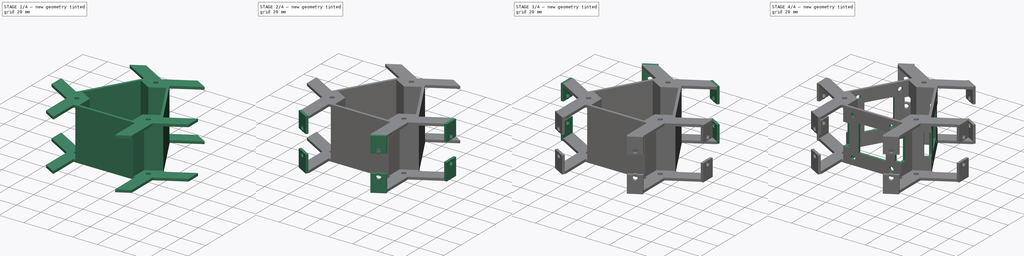
[diagram: build sequence overview — one tinted view per stage of 4, left to right]
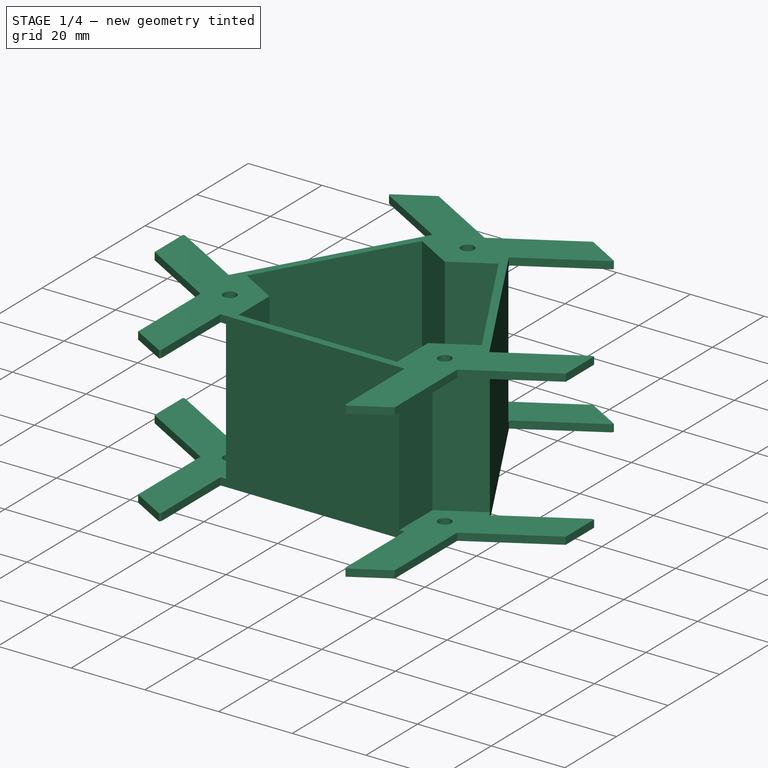
[diagram: stage 1 of 4 — iso view after this stage's code; geometry added in this stage tinted green]
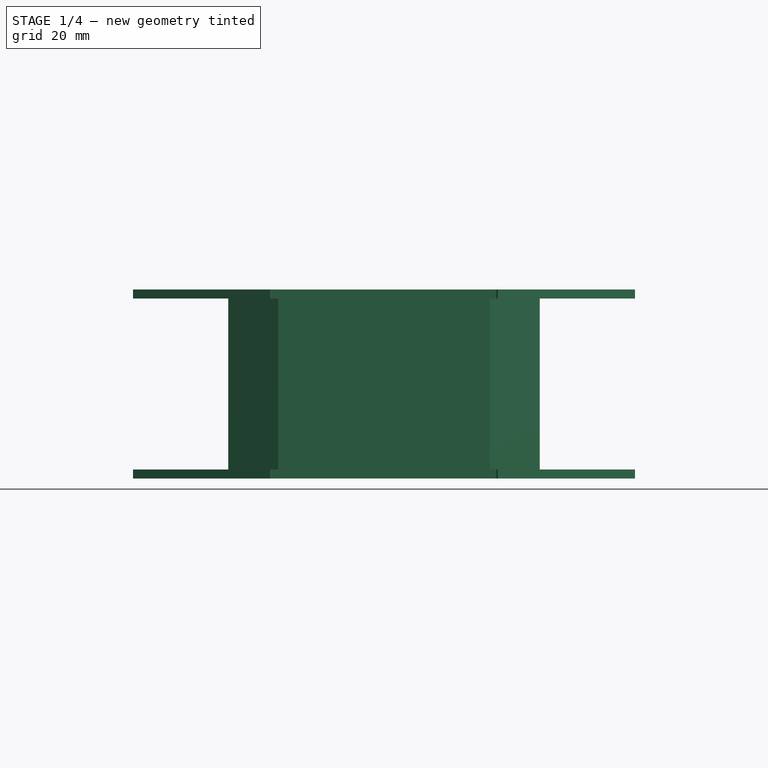
[diagram: stage 1 of 4 — front view after this stage's code; geometry added in this stage tinted green]
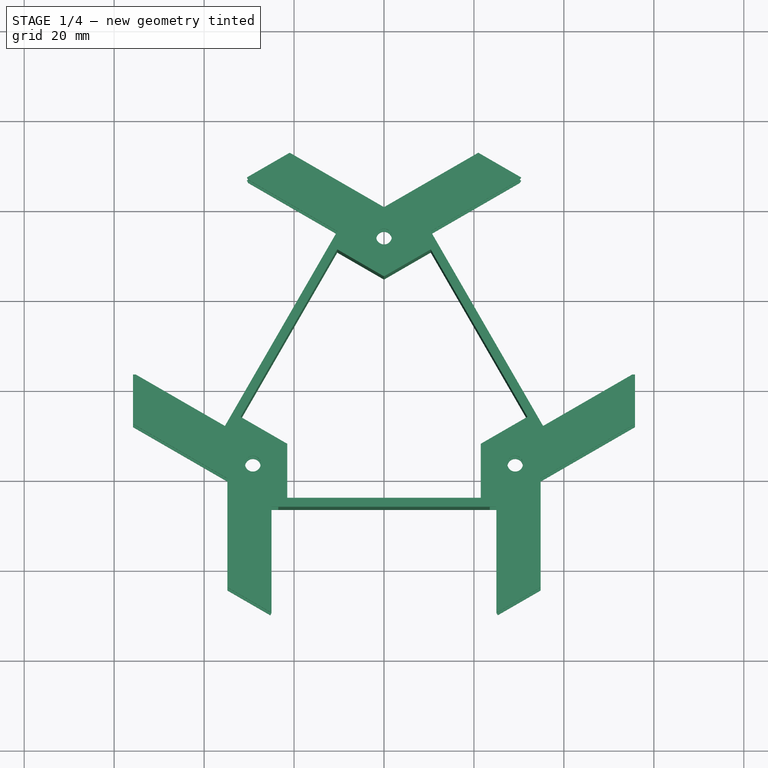
[diagram: stage 1 of 4 — top view after this stage's code; geometry added in this stage tinted green]
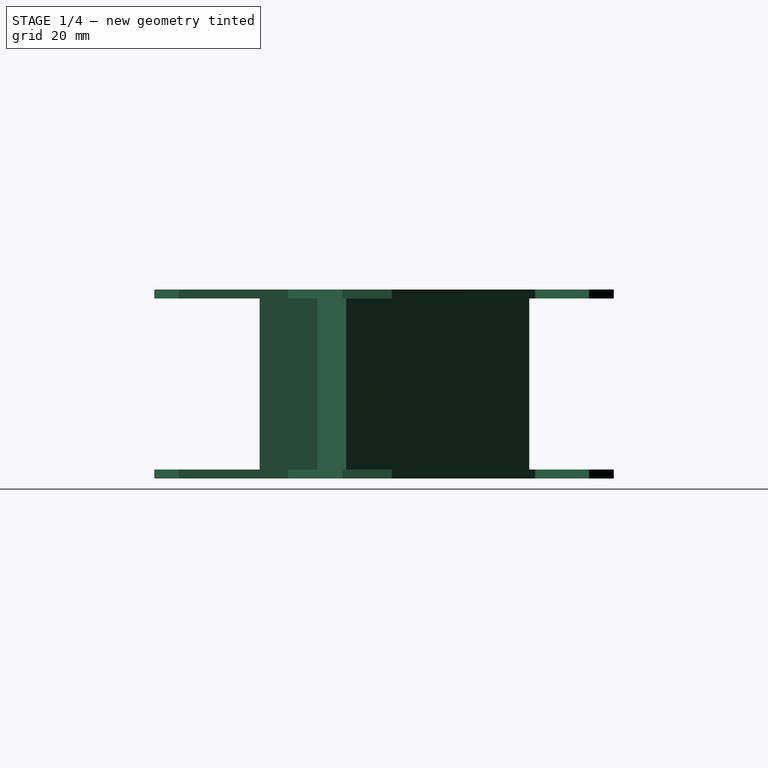
[diagram: stage 1 of 4 — right view after this stage's code; geometry added in this stage tinted green]
FCSTD DOCUMENT  (FreeCAD 0.19R)
Label: core1_motor_sensor_2
License: All rights reserved
LicenseURL: http://en.wikipedia.org/wiki/All_rights_reserved
objects: Sketcher::SketchObject×12, PartDesign::Pad×9, PartDesign::Pocket×3, PartDesign::Body×1
note: 37 computed .brp shape members not serialized (recipe doc carries the construction recipe); baked Part::Feature solids carry a one-line shape summary decoded from their .brp

FEATURE [Sketcher::SketchObject] Sketch
  FullyConstrained = true
  MapMode = 5
  Support = -> [XY_Plane]
  sketch-geometry (22):
    g0: LineSegment StartX=0 StartY=24.8261 StartZ=0 EndX=-21.5 EndY=-12.413 EndZ=0
    g1: LineSegment StartX=-21.5 StartY=-12.413 StartZ=0 EndX=21.5 EndY=-12.413 EndZ=0
    g2: LineSegment StartX=21.5 StartY=-12.413 StartZ=0 EndX=0 EndY=24.8261 EndZ=0
    g3: Circle CenterX=0 CenterY=0 CenterZ=0 NormalX=0 NormalY=0 NormalZ=1 AngleXU=0 Radius=24.8261
    g4: LineSegment StartX=-21.5 StartY=-12.413 StartZ=0 EndX=-21.5 EndY=-24.413 EndZ=0
    g5: LineSegment StartX=-21.5 StartY=-24.413 StartZ=0 EndX=21.5 EndY=-24.413 EndZ=0
    g6: LineSegment StartX=21.5 StartY=-24.413 StartZ=0 EndX=21.5 EndY=-12.413 EndZ=0
    g7: LineSegment StartX=-21.5 StartY=-12.413 StartZ=0 EndX=-31.8923 EndY=-6.41303 EndZ=0
    g8: LineSegment StartX=-31.8923 StartY=-6.41303 StartZ=0 EndX=-10.3923 EndY=30.8261 EndZ=0
    g9: LineSegment StartX=-10.3923 StartY=30.8261 StartZ=0 EndX=0 EndY=24.8261 EndZ=0
    g10: LineSegment StartX=0 StartY=24.8261 StartZ=0 EndX=10.3923 EndY=30.8261 EndZ=0
    g11: LineSegment StartX=10.3923 StartY=30.8261 StartZ=0 EndX=31.8923 EndY=-6.41303 EndZ=0
    g12: LineSegment StartX=31.8923 StartY=-6.41303 StartZ=0 EndX=21.5 EndY=-12.413 EndZ=0
    g13: LineSegment StartX=-23.5 StartY=-13.5677 StartZ=0 EndX=-23.5 EndY=-26.413 EndZ=0
    g14: LineSegment StartX=-23.5 StartY=-26.413 StartZ=0 EndX=23.5 EndY=-26.413 EndZ=0
    g15: LineSegment StartX=23.5 StartY=-26.413 StartZ=0 EndX=23.5 EndY=-13.5677 EndZ=0
    g16: LineSegment StartX=23.5 StartY=-13.5677 StartZ=0 EndX=34.6244 EndY=-7.14508 EndZ=0
    g17: LineSegment StartX=34.6244 StartY=-7.14508 StartZ=0 EndX=11.1244 EndY=33.5581 EndZ=0
    g18: LineSegment StartX=11.1244 StartY=33.5581 StartZ=0 EndX=0 EndY=27.1355 EndZ=0
    g19: LineSegment StartX=0 StartY=27.1355 StartZ=0 EndX=-11.1244 EndY=33.5581 EndZ=0
    g20: LineSegment StartX=-11.1244 StartY=33.5581 StartZ=0 EndX=-34.6244 EndY=-7.14508 EndZ=0
    g21: LineSegment StartX=-34.6244 StartY=-7.14508 StartZ=0 EndX=-23.5 EndY=-13.5677 EndZ=0
  constraints (62):
    c: Coincident(g0,g1)
    c: Coincident(g1,g2)
    c: Coincident(g2,g0)
    c: Equal(g0,g1)
    c: Equal(g0,g2)
    c: PointOnObject(g0,g3)
    c: PointOnObject(g1,g3)
    c: PointOnObject(g2,g3)
    c: Coincident(g3,g-1)
    c: PointOnObject(g2,g-2)
    c: Distance(g1) = 43
    c: Coincident(g0,g4)
    c: Vertical(g4)
    c: Coincident(g4,g5)
    c: Horizontal(g5)
    c: Coincident(g5,g6)
    c: Coincident(g6,g1)
    c: Vertical(g6)
    c: Distance(g4) = 12
    c: Coincident(g0,g7)
    c: Coincident(g7,g8)
    c: Coincident(g8,g9)
    c: Coincident(g9,g0)
    c: Coincident(g0,g10)
    c: Coincident(g10,g11)
    c: Coincident(g11,g12)
    c: Coincident(g12,g1)
    c: Parallel(g0,g8)
    c: Parallel(g2,g11)
    c: Parallel(g10,g12)
    c: Parallel(g9,g7)
    c: Distance(g7) = 12
    c: Distance(g12) = 12
    c: Angle(g0,g7) = 1.5708
    c: Angle(g12,g2) = 1.5708
    c: Vertical(g13)
    c: Coincident(g13,g14)
    c: Horizontal(g14)
    c: Coincident(g14,g15)
    c: Coincident(g15,g16)
    c: Coincident(g16,g17)
    c: Coincident(g17,g18)
    c: PointOnObject(g18,g-2)
    c: Coincident(g18,g19)
    c: Coincident(g19,g20)
    c: Coincident(g20,g21)
    c: Coincident(g21,g13)
    c: Parallel(g15,g6)
    c: Parallel(g16,g12)
    c: Parallel(g17,g11)
    c: Parallel(g10,g18)
    c: Parallel(g19,g9)
    c: Parallel(g8,g20)
    c: Parallel(g21,g7)
    c: Distance(g13,g4) = 2
    c: Distance(g13,g7) = 2
    c: Distance(g13,g5) = 2
    c: Distance(g20,g8) = 2
    c: Distance(g15,g6) = 2
    c: Distance(g15,g12) = 2
    c: Distance(g16,g11) = 2
    c: Distance(g18,g10) = 2
FEATURE [PartDesign::Pad] Pad
  Direction = (1,1,1)
  Length = 42
  Length2 = 100
  Profile = -> Sketch
  Type = 0
FEATURE [Sketcher::SketchObject] Sketch001
  ExternalGeometry = -> [Pad]
  FullyConstrained = true
  MapMode = 5
  Placement = pos=(0,0,42) rot=(0,0,1;0rad)
  Support = -> [Pad]
  sketch-geometry (60):
    g0: LineSegment StartX=-23.5 StartY=-26.413 StartZ=0 EndX=-25 EndY=-26.413 EndZ=0
    g1: LineSegment StartX=-25 StartY=-26.413 StartZ=0 EndX=-25 EndY=-52.413 EndZ=0
    g2: LineSegment StartX=-55.7962 StartY=0 StartZ=0 EndX=-27.8981 EndY=-48.3209 EndZ=0
    g3: LineSegment StartX=-27.8981 StartY=-48.3209 StartZ=0 EndX=27.8981 EndY=-48.3209 EndZ=0
    g4: LineSegment StartX=27.8981 StartY=-48.3209 StartZ=0 EndX=55.7962 EndY=0 EndZ=0
    g5: LineSegment StartX=55.7962 StartY=0 StartZ=0 EndX=27.8981 EndY=48.3209 EndZ=0
    g6: LineSegment StartX=27.8981 StartY=48.3209 StartZ=0 EndX=-27.8981 EndY=48.3209 EndZ=0
    g7: LineSegment StartX=-27.8981 StartY=48.3209 StartZ=0 EndX=-55.7962 EndY=0 EndZ=0
    g8: Circle CenterX=0 CenterY=0 CenterZ=0 NormalX=0 NormalY=0 NormalZ=1 AngleXU=0 Radius=55.7962
    g9: LineSegment StartX=34.6244 StartY=-7.14508 StartZ=0 EndX=35.3744 EndY=-8.44412 EndZ=0
    g10: LineSegment StartX=35.3744 StartY=-8.44412 StartZ=0 EndX=57.891 EndY=4.55588 EndZ=0
    g11: LineSegment StartX=-11.1244 StartY=33.5581 StartZ=0 EndX=-10.3744 EndY=34.8572 EndZ=0
    g12: LineSegment StartX=-10.3744 StartY=34.8572 StartZ=0 EndX=-32.891 EndY=47.8572 EndZ=0
    g13: LineSegment StartX=-25.3 StartY=-49.8209 StartZ=0 EndX=-34.8263 EndY=-44.3209 EndZ=0
    g14: LineSegment StartX=-25.3 StartY=-49.8209 StartZ=0 EndX=-24.5 EndY=-48.4352 EndZ=0
    g15: LineSegment StartX=-34.6244 StartY=-7.14508 StartZ=0 EndX=-35.3744 EndY=-8.44412 EndZ=0
    g16: LineSegment StartX=-35.3744 StartY=-8.44412 StartZ=0 EndX=-57.891 EndY=4.55588 EndZ=0
    g17: LineSegment StartX=11.1244 StartY=33.5581 StartZ=0 EndX=10.3744 EndY=34.8572 EndZ=0
    g18: LineSegment StartX=10.3744 StartY=34.8572 StartZ=0 EndX=32.891 EndY=47.8572 EndZ=0
    g19: LineSegment StartX=23.5 StartY=-26.413 StartZ=0 EndX=25 EndY=-26.413 EndZ=0
    g20: LineSegment StartX=25 StartY=-26.413 StartZ=0 EndX=25 EndY=-52.413 EndZ=0
    g21: LineSegment StartX=-23.5 StartY=-13.5677 StartZ=0 EndX=-23.5 EndY=-26.413 EndZ=0
    g22: LineSegment StartX=-23.5 StartY=-26.413 StartZ=0 EndX=-25 EndY=-26.413 EndZ=0
    g23: LineSegment StartX=-25.3 StartY=-49.8209 StartZ=0 EndX=-34.8263 EndY=-44.3209 EndZ=0
    g24: LineSegment StartX=-34.8263 StartY=-44.3209 StartZ=0 EndX=-34.8263 EndY=-20.107 EndZ=0
    g25: LineSegment StartX=-34.8263 StartY=-20.107 StartZ=0 EndX=-55.7962 EndY=-8 EndZ=0
    g26: LineSegment StartX=-55.7962 StartY=-8 StartZ=0 EndX=-55.7962 EndY=3 EndZ=0
    g27: LineSegment StartX=-55.7962 StartY=3 StartZ=0 EndX=-55.1962 EndY=3 EndZ=0
    g28: LineSegment StartX=-55.1962 StartY=3 StartZ=0 EndX=-35.3744 EndY=-8.44412 EndZ=0
    g29: LineSegment StartX=-35.3744 StartY=-8.44412 StartZ=0 EndX=-34.6244 EndY=-7.14508 EndZ=0
    g30: LineSegment StartX=-34.6244 StartY=-7.14508 StartZ=0 EndX=-23.5 EndY=-13.5677 EndZ=0
    g31: LineSegment StartX=23.5 StartY=-13.5677 StartZ=0 EndX=23.5 EndY=-26.413 EndZ=0
    g32: LineSegment StartX=23.5 StartY=-26.413 StartZ=0 EndX=25 EndY=-26.413 EndZ=0
    g33: LineSegment StartX=25 StartY=-26.413 StartZ=0 EndX=25 EndY=-49.3013 EndZ=0
    g34: LineSegment StartX=25 StartY=-49.3013 StartZ=0 EndX=25.3 EndY=-49.8209 EndZ=0
    g35: LineSegment StartX=25.3 StartY=-49.8209 StartZ=0 EndX=34.8263 EndY=-44.3209 EndZ=0
    g36: LineSegment StartX=34.8263 StartY=-44.3209 StartZ=0 EndX=34.8263 EndY=-20.107 EndZ=0
    g37: LineSegment StartX=34.8263 StartY=-20.107 StartZ=0 EndX=55.7962 EndY=-8 EndZ=0
    g38: LineSegment StartX=55.7962 StartY=-8 StartZ=0 EndX=55.7962 EndY=3 EndZ=0
    g39: LineSegment StartX=55.7962 StartY=3 StartZ=0 EndX=55.1962 EndY=3 EndZ=0
    g40: LineSegment StartX=55.1962 StartY=3 StartZ=0 EndX=35.3744 EndY=-8.44412 EndZ=0
    g41: LineSegment StartX=35.3744 StartY=-8.44412 StartZ=0 EndX=34.6244 EndY=-7.14508 EndZ=0
    g42: LineSegment StartX=34.6244 StartY=-7.14508 StartZ=0 EndX=23.5 EndY=-13.5677 EndZ=0
    g43: LineSegment StartX=0 StartY=27.1355 StartZ=0 EndX=-11.1244 EndY=33.5581 EndZ=0
    g44: LineSegment StartX=-11.1244 StartY=33.5581 StartZ=0 EndX=-10.3744 EndY=34.8572 EndZ=0
    g45: LineSegment StartX=-10.3744 StartY=34.8572 StartZ=0 EndX=-30.1962 EndY=46.3013 EndZ=0
    g46: LineSegment StartX=-30.1962 StartY=46.3013 StartZ=0 EndX=-30.4962 EndY=46.8209 EndZ=0
    g47: LineSegment StartX=-30.4962 StartY=46.8209 StartZ=0 EndX=-20.9699 EndY=52.3209 EndZ=0
    g48: LineSegment StartX=-20.9699 StartY=52.3209 StartZ=0 EndX=0 EndY=40.2139 EndZ=0
    g49: LineSegment StartX=0 StartY=40.2139 StartZ=0 EndX=20.9699 EndY=52.3209 EndZ=0
    g50: LineSegment StartX=20.9699 StartY=52.3209 StartZ=0 EndX=30.4962 EndY=46.8209 EndZ=0
    g51: LineSegment StartX=30.4962 StartY=46.8209 StartZ=0 EndX=30.1962 EndY=46.3013 EndZ=0
    g52: LineSegment StartX=30.1962 StartY=46.3013 StartZ=0 EndX=10.3744 EndY=34.8572 EndZ=0
    g53: LineSegment StartX=10.3744 StartY=34.8572 StartZ=0 EndX=11.1244 EndY=33.5581 EndZ=0
    g54: LineSegment StartX=11.1244 StartY=33.5581 StartZ=0 EndX=0 EndY=27.1355 EndZ=0
    g55: LineSegment StartX=-25.3 StartY=-49.8209 StartZ=0 EndX=-25 EndY=-49.3013 EndZ=0
    g56: LineSegment StartX=-25 StartY=-49.3013 StartZ=0 EndX=-25 EndY=-26.413 EndZ=0
    g57: Circle CenterX=29.1631 CenterY=-16.8373 CenterZ=0 NormalX=0 NormalY=0 NormalZ=1 AngleXU=0 Radius=1.75
    g58: Circle CenterX=0 CenterY=33.6747 CenterZ=0 NormalX=0 NormalY=0 NormalZ=1 AngleXU=0 Radius=1.75
    g59: Circle CenterX=-29.1631 CenterY=-16.8373 CenterZ=0 NormalX=0 NormalY=0 NormalZ=1 AngleXU=0 Radius=1.75
  constraints (156):
    c: Coincident(g-4,g0)
    c: Coincident(g0,g1)
    c: Vertical(g1)
    c: Distance(g0) = 1.5
    c: Distance(g1) = 26
    c: Parallel(g-3,g0)
    c: Coincident(g2,g3)
    c: Coincident(g3,g4)
    c: Coincident(g4,g5)
    c: Coincident(g5,g6)
    c: Coincident(g6,g7)
    c: Coincident(g7,g2)
    c: Equal(g2, g3-g7) x5
    c: PointOnObject(g2,g8)
    c: PointOnObject(g3,g8)
    c: PointOnObject(g4,g8)
    c: PointOnObject(g5,g8)
    c: PointOnObject(g6,g8)
    c: PointOnObject(g7,g8)
    c: Coincident(g8,g-1)
    c: PointOnObject(g7,g-1)
    c: Coincident(g-10,g9)
    c: Coincident(g9,g10)
    c: Parallel(g9,g-9)
    c: Distance(g9) = 1.5
    c: Angle(g10,g9) = 1.5708
    c: Distance(g10) = 26
    c: Coincident(g-7,g11)
    c: Coincident(g11,g12)
    c: Parallel(g-6,g11)
    c: Angle(g12,g11) = 1.5708
    c: Distance(g11) = 1.5
    c: Distance(g12) = 26
    c: PointOnObject(g2,g13)
    c: Tangent(g13,g8)
    c: Distance(g2,g13) = 3
    c: Distance(g2,g13) = 8
    c: Coincident(g14,g13)
    c: Distance(g14) = 1.6
    c: Angle(g14,g13) = 1.5708
    c: Distance(g14,g1) = 0.5
    c: Coincident(g-6,g15)
    c: Coincident(g15,g16)
    c: Distance(g15) = 1.5
    c: Distance(g16) = 26
    c: Angle(g15,g16) = 1.5708
    c: Parallel(g-6,g15)
    c: Coincident(g-9,g17)
    c: Coincident(g17,g18)
    c: Parallel(g-9,g17)
    c: Angle(g17,g18) = 1.5708
    c: Distance(g17) = 1.5
    c: Distance(g18) = 26
    c: Coincident(g-11,g19)
    c: Coincident(g19,g20)
    c: Vertical(g20)
    c: Horizontal(g19)
    c: Distance(g19) = 1.5
    c: Distance(g20) = 26
    c: Coincident(g-5,g21)
    c: Coincident(g21,g0)
    c: Coincident(g21,g22)
    c: Coincident(g22,g0)
    c: Coincident(g23,g13)
    c: Coincident(g23,g24)
    c: Vertical(g24)
    c: Coincident(g24,g25)
    c: Coincident(g25,g26)
    c: Coincident(g26,g27)
    c: PointOnObject(g27,g16)
    c: Coincident(g27,g28)
    c: Coincident(g28,g15)
    c: Coincident(g28,g29)
    c: Coincident(g29,g15)
    c: Coincident(g29,g30)
    c: Coincident(g30,g21)
    c: PointOnObject(g2,g26)
    c: Tangent(g8,g26)
    c: Distance(g2,g26) = 3
    c: Distance(g2,g25) = 8
    c: Parallel(g25,g28)
    c: Angle(g26,g27) = 1.5708
    c: Coincident(g-11,g31)
    c: Coincident(g31,g19)
    c: Coincident(g31,g32)
    c: Coincident(g32,g19)
    c: Coincident(g32,g33)
    c: PointOnObject(g33,g20)
    c: Coincident(g33,g34)
    c: Coincident(g34,g35)
    c: Coincident(g35,g36)
    c: Vertical(g36)
    c: Coincident(g36,g37)
    c: Coincident(g37,g38)
    c: Vertical(g38)
    c: Coincident(g38,g39)
    c: PointOnObject(g39,g10)
    c: Coincident(g39,g40)
    c: Coincident(g40,g9)
    c: Coincident(g40,g41)
    c: Coincident(g41,g9)
    c: Coincident(g41,g42)
    c: Coincident(g42,g31)
    c: Angle(g35,g34) = 1.5708
    c: Angle(g39,g38) = 1.5708
    c: PointOnObject(g4,g38)
    c: Parallel(g40,g37)
    c: Distance(g4,g38) = 3
    c: Distance(g4,g37) = 8
    c: PointOnObject(g3,g35)
    c: Tangent(g35,g8)
    c: Distance(g3,g34) = 3
    c: Distance(g3,g35) = 8
    c: Coincident(g-8,g43)
    c: Coincident(g43,g11)
    c: Coincident(g43,g44)
    c: Coincident(g44,g11)
    c: Coincident(g44,g45)
    c: PointOnObject(g45,g12)
    c: Coincident(g45,g46)
    c: Coincident(g46,g47)
    c: Coincident(g47,g48)
    c: PointOnObject(g48,g-2)
    c: Coincident(g48,g49)
    c: Coincident(g49,g50)
    c: Coincident(g50,g51)
    c: PointOnObject(g51,g18)
    c: Coincident(g51,g52)
    c: Coincident(g52,g17)
    c: Coincident(g52,g53)
    c: Coincident(g53,g17)
    c: Coincident(g53,g54)
    c: Coincident(g54,g43)
    c: Angle(g46,g47) = 1.5708
    c: Angle(g50,g51) = 1.5708
    c: PointOnObject(g5,g50)
    c: Tangent(g50,g8)
    c: PointOnObject(g6,g47)
    c: Tangent(g8,g47)
    c: Distance(g6,g46) = 3
    c: Distance(g6,g47) = 8
    c: Distance(g50,g5) = 3
    c: Distance(g5,g49) = 8
    c: Parallel(g52,g49)
    c: Coincident(g23,g55)
    c: PointOnObject(g55,g1)
    c: Coincident(g55,g56)
    c: Coincident(g56,g22)
    c: Angle(g55,g23) = 1.5708
    c: Coincident(g23,g13)
    c: Diameter(g57) = 3.5
    c: Symmetric(g31,g36,g57)
    c: Diameter(g58) = 3.5
    c: Symmetric(g43,g48,g58)
    c: Diameter(g59) = 3.5
    c: Symmetric(g24,g21,g59)
FEATURE [Sketcher::SketchObject] Sketch003
  FullyConstrained = false
  MapMode = 5
  Placement = pos=(27.8981,-48.3209,0) rot=(0.935113,0.250563,0.250563;1.63783rad)
  sketch-geometry (14):
    g0: LineSegment StartX=-3 StartY=42 StartZ=0 EndX=8 EndY=42 EndZ=0
    g1: LineSegment StartX=8 StartY=42 StartZ=0 EndX=8 EndY=29 EndZ=0
    g2: LineSegment StartX=8 StartY=29 StartZ=0 EndX=4.15831 EndY=29 EndZ=0
    g3: LineSegment StartX=-3 StartY=29 StartZ=0 EndX=-3 EndY=42 EndZ=0
    g4: Circle CenterX=2.5 CenterY=31.5 CenterZ=0 NormalX=0 NormalY=0 NormalZ=1 AngleXU=0 Radius=1.75
    g5: ArcOfCircle CenterX=2.5 CenterY=31.5 CenterZ=0 NormalX=0 NormalY=0 NormalZ=1 AngleXU=0 Radius=3 StartAngle=4.1267 EndAngle=5.29807
    g6: LineSegment StartX=-3 StartY=0 StartZ=0 EndX=8 EndY=0 EndZ=0
    g7: LineSegment StartX=8 StartY=0 StartZ=0 EndX=8 EndY=14 EndZ=0
    g8: LineSegment StartX=8 StartY=14 StartZ=0 EndX=4.15831 EndY=14 EndZ=0
    g9: LineSegment StartX=-3 StartY=14 StartZ=0 EndX=-3 EndY=0 EndZ=0
    g10: Circle CenterX=2.5 CenterY=11.5 CenterZ=0 NormalX=0 NormalY=0 NormalZ=1 AngleXU=0 Radius=1.75
    g11: ArcOfCircle CenterX=2.5 CenterY=11.5 CenterZ=0 NormalX=0 NormalY=0 NormalZ=1 AngleXU=0 Radius=3 StartAngle=0.985111 EndAngle=2.15648
    g12: LineSegment StartX=0.841687 StartY=29 StartZ=0 EndX=-3 EndY=29 EndZ=0
    g13: LineSegment StartX=0.841687 StartY=14 StartZ=0 EndX=-3 EndY=14 EndZ=0
  constraints (36):
    c: Coincident(g0,g1)
    c: Coincident(g1,g2)
    c: Coincident(g12,g3)
    c: Coincident(g3,g0)
    c: Horizontal(g0)
    c: Horizontal(g2)
    c: Vertical(g1)
    c: Vertical(g3)
    c: Distance(g0) = 11
    c: Distance(g3) = 13
    c: Diameter(g4) = 3.5
    c: Distance(g4,g2) = 2.5
    c: Distance(g4,g3) = 5.5
    c: Coincident(g5,g4)
    c: Diameter(g5) = 6
    c: Coincident(g6,g7)
    c: Coincident(g7,g8)
    c: Coincident(g13,g9)
    c: Coincident(g9,g6)
    c: Horizontal(g6)
    c: Horizontal(g8)
    c: Vertical(g7)
    c: Vertical(g9)
    c: Distance(g6) = 11
    c: Coincident(g11,g10)
    c: Distance(g4,g10) = 20
    c: Diameter(g10) = 3.5
    c: Diameter(g11) = 6
    c: Distance(g10,g9) = 5.5
    c: Distance(g10,g8) = 2.5
    c: Coincident(g2,g5)
    c: Coincident(g12,g5)
    c: Tangent(g2,g12)
    c: Coincident(g8,g11)
    c: Coincident(g13,g11)
    c: Tangent(g8,g13)
FEATURE [PartDesign::Pad] Pad001
  BaseFeature = -> Pad
  Direction = (1,1,1)
  Length = 2
  Length2 = 100
  Profile = -> Sketch001
  Reversed = true
  Type = 0
FEATURE [Sketcher::SketchObject] Sketch004
  ExternalGeometry = -> [Pad001,Sketch003]
  FullyConstrained = true
  MapMode = 5
  Placement = pos=(0,0,0) rot=(1,0,0;3.14159rad)
  Support = -> [Pad001]
  sketch-geometry (39):
    g0: LineSegment StartX=-34.8263 StartY=20.107 StartZ=0 EndX=-34.8263 EndY=44.3209 EndZ=0
    g1: LineSegment StartX=-34.8263 StartY=44.3209 StartZ=0 EndX=-25.3 EndY=49.8209 EndZ=0
    g2: LineSegment StartX=-25.3 StartY=49.8209 StartZ=0 EndX=-25 EndY=49.3013 EndZ=0
    g3: LineSegment StartX=-25 StartY=49.3013 StartZ=0 EndX=-25 EndY=26.413 EndZ=0
    g4: LineSegment StartX=-25 StartY=26.413 StartZ=0 EndX=-23.5 EndY=26.413 EndZ=0
    g5: LineSegment StartX=-23.5 StartY=26.413 StartZ=0 EndX=-23.5 EndY=13.5677 EndZ=0
    g6: LineSegment StartX=-23.5 StartY=13.5677 StartZ=0 EndX=-34.6244 EndY=7.14508 EndZ=0
    g7: LineSegment StartX=-34.6244 StartY=7.14508 StartZ=0 EndX=-35.3744 EndY=8.44412 EndZ=0
    g8: LineSegment StartX=-35.3744 StartY=8.44412 StartZ=0 EndX=-55.1962 EndY=-3 EndZ=0
    g9: LineSegment StartX=-55.1962 StartY=-3 StartZ=0 EndX=-55.7962 EndY=-3 EndZ=0
    g10: LineSegment StartX=-55.7962 StartY=-3 StartZ=0 EndX=-55.7962 EndY=8 EndZ=0
    g11: LineSegment StartX=-55.7962 StartY=8 StartZ=0 EndX=-34.8263 EndY=20.107 EndZ=0
    g12: LineSegment StartX=23.5 StartY=13.5677 StartZ=0 EndX=34.6244 EndY=7.14508 EndZ=0
    g13: LineSegment StartX=34.6244 StartY=7.14508 StartZ=0 EndX=35.3744 EndY=8.44412 EndZ=0
    g14: LineSegment StartX=35.3744 StartY=8.44412 StartZ=0 EndX=55.1962 EndY=-3 EndZ=0
    g15: LineSegment StartX=55.1962 StartY=-3 StartZ=0 EndX=55.7962 EndY=-3 EndZ=0
    g16: LineSegment StartX=55.7962 StartY=-3 StartZ=0 EndX=55.7962 EndY=8 EndZ=0
    g17: LineSegment StartX=55.7962 StartY=8 StartZ=0 EndX=34.8263 EndY=20.107 EndZ=0
    g18: LineSegment StartX=34.8263 StartY=20.107 StartZ=0 EndX=34.8263 EndY=44.3209 EndZ=0
    g19: LineSegment StartX=34.8263 StartY=44.3209 StartZ=0 EndX=25.3 EndY=49.8209 EndZ=0
    g20: LineSegment StartX=25.3 StartY=49.8209 StartZ=0 EndX=25 EndY=49.3013 EndZ=0
    g21: LineSegment StartX=25 StartY=49.3013 StartZ=0 EndX=25 EndY=26.413 EndZ=0
    g22: LineSegment StartX=25 StartY=26.413 StartZ=0 EndX=23.5 EndY=26.413 EndZ=0
    g23: LineSegment StartX=23.5 StartY=26.413 StartZ=0 EndX=23.5 EndY=13.5677 EndZ=0
    g24: LineSegment StartX=0 StartY=-27.1355 StartZ=0 EndX=11.1244 EndY=-33.5581 EndZ=0
    g25: LineSegment StartX=11.1244 StartY=-33.5581 StartZ=0 EndX=10.3744 EndY=-34.8572 EndZ=0
    g26: LineSegment StartX=10.3744 StartY=-34.8572 StartZ=0 EndX=30.1962 EndY=-46.3013 EndZ=0
    g27: LineSegment StartX=30.1962 StartY=-46.3013 StartZ=0 EndX=30.4962 EndY=-46.8209 EndZ=0
    g28: LineSegment StartX=30.4962 StartY=-46.8209 StartZ=0 EndX=20.9699 EndY=-52.3209 EndZ=0
    g29: LineSegment StartX=20.9699 StartY=-52.3209 StartZ=0 EndX=0 EndY=-40.2139 EndZ=0
    g30: LineSegment StartX=0 StartY=-40.2139 StartZ=0 EndX=-20.9699 EndY=-52.3209 EndZ=0
    g31: LineSegment StartX=-20.9699 StartY=-52.3209 StartZ=0 EndX=-30.4962 EndY=-46.8209 EndZ=0
    g32: LineSegment StartX=-30.4962 StartY=-46.8209 StartZ=0 EndX=-30.1962 EndY=-46.3013 EndZ=0
    g33: LineSegment StartX=-30.1962 StartY=-46.3013 StartZ=0 EndX=-10.3744 EndY=-34.8572 EndZ=0
    g34: LineSegment StartX=-10.3744 StartY=-34.8572 StartZ=0 EndX=-11.1244 EndY=-33.5581 EndZ=0
    g35: LineSegment StartX=-11.1244 StartY=-33.5581 StartZ=0 EndX=0 EndY=-27.1355 EndZ=0
    g36: Circle CenterX=-29.1631 CenterY=16.8373 CenterZ=0 NormalX=0 NormalY=0 NormalZ=1 AngleXU=0 Radius=1.75
    g37: Circle CenterX=29.1631 CenterY=16.8373 CenterZ=0 NormalX=0 NormalY=0 NormalZ=1 AngleXU=0 Radius=1.75
    g38: Circle CenterX=0 CenterY=-33.6747 CenterZ=0 NormalX=0 NormalY=0 NormalZ=1 AngleXU=0 Radius=1.75
  constraints (78):
    c: Coincident(g-28,g0)
    c: Coincident(g0,g-28)
    c: Coincident(g0,g1)
    c: Coincident(g1,g-29)
    c: Coincident(g1,g2)
    c: Coincident(g2,g-29)
    c: Coincident(g2,g3)
    c: Coincident(g3,g-24)
    c: Coincident(g3,g4)
    c: Coincident(g4,g-24)
    c: Coincident(g4,g5)
    c: Coincident(g5,g-25)
    c: Coincident(g5,g6)
    c: Coincident(g6,g-25)
    c: Coincident(g6,g7)
    c: Coincident(g7,g-26)
    c: Coincident(g7,g8)
    c: Coincident(g8,g-26)
    c: Coincident(g8,g9)
    c: Coincident(g9,g-27)
    c: Coincident(g9,g10)
    c: Coincident(g10,g-27)
    c: Coincident(g10,g11)
    c: Coincident(g11,g0)
    c: Coincident(g-22,g12)
    c: Coincident(g12,g-22)
    c: Coincident(g12,g13)
    c: Coincident(g13,g-21)
    c: Coincident(g13,g14)
    c: Coincident(g14,g-21)
    c: Coincident(g14,g15)
    c: Coincident(g15,g-20)
    c: Coincident(g15,g16)
    c: Coincident(g16,g-20)
    c: Coincident(g16,g17)
    c: Coincident(g17,g-19)
    c: Coincident(g17,g18)
    c: Coincident(g18,g-19)
    c: Coincident(g18,g19)
    c: Coincident(g19,g-18)
    c: Coincident(g19,g20)
    c: Coincident(g20,g-17)
    c: Coincident(g20,g21)
    c: Coincident(g21,g-17)
    c: Coincident(g21,g22)
    c: Coincident(g22,g-16)
    c: Coincident(g22,g23)
    c: Coincident(g23,g12)
    c: Coincident(g-5,g24)
    c: Coincident(g24,g-6)
    c: Coincident(g24,g25)
    c: Coincident(g25,g-7)
    c: Coincident(g25,g26)
    c: Coincident(g26,g-15)
    c: Coincident(g26,g27)
    c: Coincident(g27,g-15)
    c: Coincident(g27,g28)
    c: Coincident(g28,g-9)
    c: Coincident(g28,g29)
    c: Coincident(g29,g-10)
    c: Coincident(g29,g30)
    c: Coincident(g30,g-13)
    c: Coincident(g30,g31)
    c: Coincident(g31,g-14)
    c: Coincident(g31,g32)
    c: Coincident(g32,g-14)
    c: Coincident(g32,g33)
    c: Coincident(g33,g-12)
    c: Coincident(g33,g34)
    c: Coincident(g34,g-12)
    c: Coincident(g34,g35)
    c: Coincident(g35,g24)
    c: Coincident(g36,g-30)
    c: Coincident(g37,g-23)
    c: Coincident(g38,g-4)
    c: Diameter(g38) = 3.5
    c: Diameter(g37) = 3.5
    c: Diameter(g36) = 3.5
FEATURE [PartDesign::Pad] Pad002
  BaseFeature = -> Pad001
  Direction = (1,1,1)
  Length = 2
  Length2 = 100
  Profile = -> Sketch004
  Reversed = true
  Type = 0
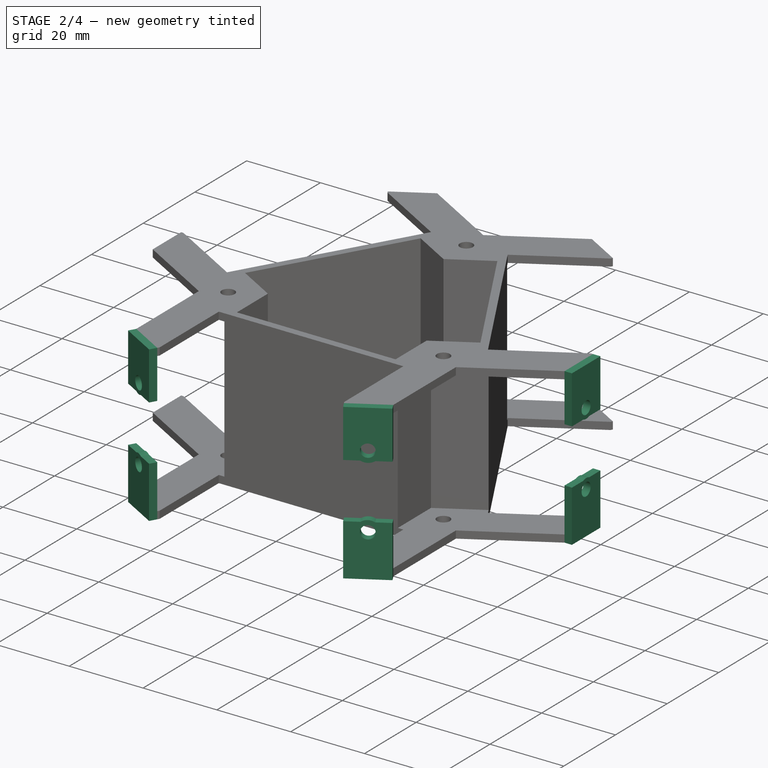
[diagram: stage 2 of 4 — iso view after this stage's code; geometry added in this stage tinted green]
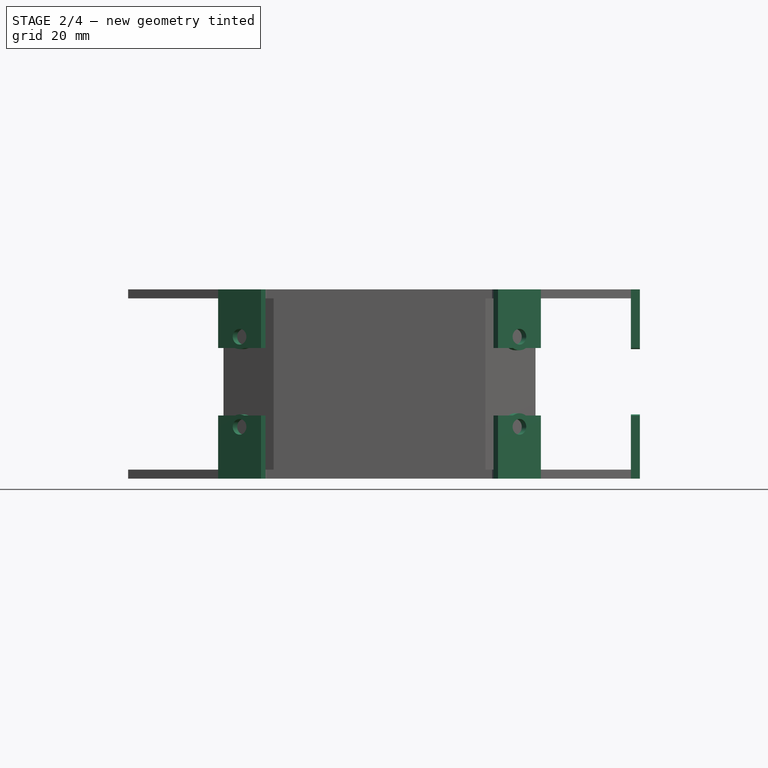
[diagram: stage 2 of 4 — front view after this stage's code; geometry added in this stage tinted green]
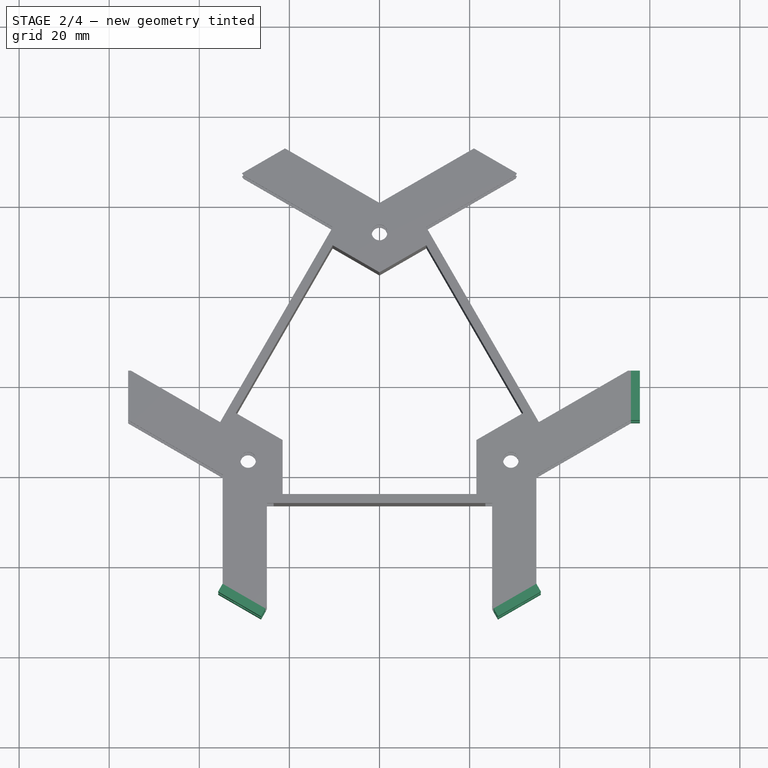
[diagram: stage 2 of 4 — top view after this stage's code; geometry added in this stage tinted green]
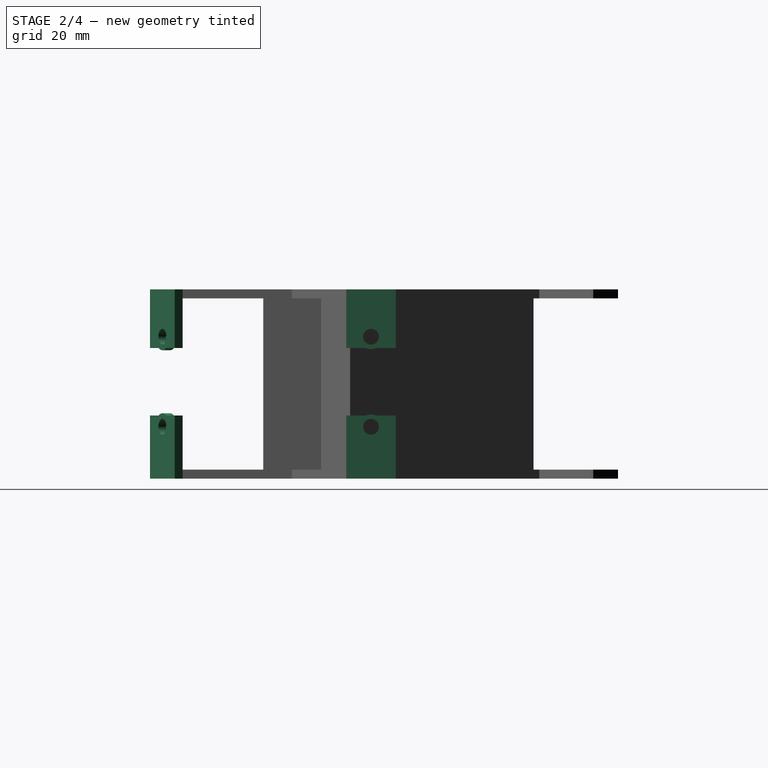
[diagram: stage 2 of 4 — right view after this stage's code; geometry added in this stage tinted green]
FEATURE [PartDesign::Pad] Pad003
  BaseFeature = -> Pad002
  Direction = (1,1,1)
  Length = 2
  Length2 = 100
  Profile = -> Sketch003
  Type = 0
FEATURE [Sketcher::SketchObject] Sketch005
  ExternalGeometry = -> [Pad003]
  FullyConstrained = true
  MapMode = 5
  Placement = pos=(55.7962,0,0) rot=(0.57735,0.57735,0.57735;2.0944rad)
  Support = -> [Pad003]
  sketch-geometry (14):
    g0: LineSegment StartX=-8 StartY=42 StartZ=0 EndX=3 EndY=42 EndZ=0
    g1: LineSegment StartX=3 StartY=42 StartZ=0 EndX=3 EndY=29 EndZ=0
    g2: LineSegment StartX=3 StartY=29 StartZ=0 EndX=-1.35436 EndY=29 EndZ=0
    g3: LineSegment StartX=-8 StartY=29 StartZ=0 EndX=-8 EndY=42 EndZ=0
    g4: LineSegment StartX=-8 StartY=0 StartZ=0 EndX=3 EndY=0 EndZ=0
    g5: LineSegment StartX=3 StartY=0 StartZ=0 EndX=3 EndY=14 EndZ=0
    g6: LineSegment StartX=3 StartY=14 StartZ=0 EndX=-1.35436 EndY=14 EndZ=0
    g7: LineSegment StartX=-8 StartY=14 StartZ=0 EndX=-8 EndY=0 EndZ=0
    g8: Circle CenterX=-2.5 CenterY=31.5 CenterZ=0 NormalX=0 NormalY=0 NormalZ=1 AngleXU=0 Radius=1.75
    g9: ArcOfCircle CenterX=-2.5 CenterY=31.5 CenterZ=0 NormalX=0 NormalY=0 NormalZ=1 AngleXU=0 Radius=2.75 StartAngle=4.28269 EndAngle=5.14209
    g10: Circle CenterX=-2.5 CenterY=11.5 CenterZ=0 NormalX=0 NormalY=0 NormalZ=1 AngleXU=0 Radius=1.75
    g11: ArcOfCircle CenterX=-2.5 CenterY=11.5 CenterZ=0 NormalX=0 NormalY=0 NormalZ=1 AngleXU=0 Radius=2.75 StartAngle=1.1411 EndAngle=2.0005
    g12: LineSegment StartX=-3.64564 StartY=29 StartZ=0 EndX=-8 EndY=29 EndZ=0
    g13: LineSegment StartX=-3.64564 StartY=14 StartZ=0 EndX=-8 EndY=14 EndZ=0
  constraints (38):
    c: Coincident(g0,g1)
    c: Coincident(g1,g2)
    c: Coincident(g12,g3)
    c: Coincident(g3,g0)
    c: Horizontal(g0)
    c: Horizontal(g2)
    c: Vertical(g1)
    c: Vertical(g3)
    c: Coincident(g0,g-3)
    c: Distance(g0) = 11
    c: Distance(g3) = 13
    c: Coincident(g4,g5)
    c: Coincident(g5,g6)
    c: Coincident(g13,g7)
    c: Coincident(g7,g4)
    c: Horizontal(g4)
    c: Horizontal(g6)
    c: Vertical(g5)
    c: Vertical(g7)
    c: Coincident(g4,g-4)
    c: Distance(g4) = 11
    c: Coincident(g9,g8)
    c: Coincident(g11,g10)
    c: Diameter(g8) = 3.5
    c: Diameter(g9) = 5.5
    c: Diameter(g10) = 3.5
    c: Diameter(g11) = 5.5
    c: Distance(g8,g2) = 2.5
    c: Distance(g8,g10) = 20
    c: Distance(g10,g6) = 2.5
    c: Distance(g8,g3) = 5.5
    c: Distance(g10,g7) = 5.5
    c: Coincident(g2,g9)
    c: Coincident(g12,g9)
    c: Tangent(g2,g12)
    c: Coincident(g6,g11)
    c: Coincident(g13,g11)
    c: Tangent(g6,g13)
FEATURE [PartDesign::Pad] Pad004
  BaseFeature = -> Pad003
  Direction = (1,1,1)
  Length = 2
  Length2 = 100
  Profile = -> Sketch005
  Type = 0
FEATURE [Sketcher::SketchObject] Sketch006
  ExternalGeometry = -> [Pad004]
  FullyConstrained = true
  MapMode = 5
  Placement = pos=(-27.898,-48.3209,0) rot=(0.935113,-0.250562,-0.250562;1.63783rad)
  Support = -> [Pad004]
  sketch-geometry (14):
    g0: LineSegment StartX=-8.00009 StartY=42 StartZ=0 EndX=2.99991 EndY=42 EndZ=0
    g1: LineSegment StartX=2.99991 StartY=42 StartZ=0 EndX=2.99991 EndY=29 EndZ=0
    g2: LineSegment StartX=2.99991 StartY=29 StartZ=0 EndX=-1.35444 EndY=29 EndZ=0
    g3: LineSegment StartX=-8.00009 StartY=29 StartZ=0 EndX=-8.00009 EndY=42 EndZ=0
    g4: LineSegment StartX=-8.00009 StartY=0 StartZ=0 EndX=2.99991 EndY=0 EndZ=0
    g5: LineSegment StartX=2.99991 StartY=0 StartZ=0 EndX=2.99991 EndY=14 EndZ=0
    g6: LineSegment StartX=2.99991 StartY=14 StartZ=0 EndX=-1.35444 EndY=14 EndZ=0
    g7: LineSegment StartX=-8.00009 StartY=14 StartZ=0 EndX=-8.00009 EndY=0 EndZ=0
    g8: Circle CenterX=-2.50009 CenterY=31.5 CenterZ=0 NormalX=0 NormalY=0 NormalZ=1 AngleXU=0 Radius=1.75
    g9: ArcOfCircle CenterX=-2.50009 CenterY=31.5 CenterZ=0 NormalX=0 NormalY=0 NormalZ=1 AngleXU=0 Radius=2.75 StartAngle=4.28269 EndAngle=5.14209
    g10: Circle CenterX=-2.50009 CenterY=11.5 CenterZ=0 NormalX=0 NormalY=0 NormalZ=1 AngleXU=0 Radius=1.75
    g11: ArcOfCircle CenterX=-2.50009 CenterY=11.5 CenterZ=0 NormalX=0 NormalY=0 NormalZ=1 AngleXU=0 Radius=2.75 StartAngle=1.1411 EndAngle=2.0005
    g12: LineSegment StartX=-3.64573 StartY=29 StartZ=0 EndX=-8.00009 EndY=29 EndZ=0
    g13: LineSegment StartX=-3.64573 StartY=14 StartZ=0 EndX=-8.00009 EndY=14 EndZ=0
  constraints (38):
    c: Coincident(g0,g1)
    c: Coincident(g1,g2)
    c: Coincident(g12,g3)
    c: Coincident(g3,g0)
    c: Horizontal(g0)
    c: Horizontal(g2)
    c: Vertical(g1)
    c: Vertical(g3)
    c: Coincident(g0,g-3)
    c: Coincident(g4,g5)
    c: Coincident(g5,g6)
    c: Coincident(g13,g7)
    c: Coincident(g7,g4)
    c: Horizontal(g4)
    c: Horizontal(g6)
    c: Vertical(g5)
    c: Vertical(g7)
    c: Coincident(g4,g-4)
    c: Distance(g0) = 11
    c: Distance(g4) = 11
    c: Distance(g3) = 13
    c: Coincident(g9,g8)
    c: Coincident(g11,g10)
    c: Diameter(g8) = 3.5
    c: Diameter(g10) = 3.5
    c: Diameter(g9) = 5.5
    c: Diameter(g11) = 5.5
    c: Distance(g8,g2) = 2.5
    c: Distance(g8,g3) = 5.5
    c: Distance(g8,g10) = 20
    c: Distance(g10,g6) = 2.5
    c: Distance(g10,g7) = 5.5
    c: Coincident(g2,g9)
    c: Coincident(g12,g9)
    c: Tangent(g2,g12)
    c: Coincident(g6,g11)
    c: Coincident(g13,g11)
    c: Tangent(g6,g13)
FEATURE [PartDesign::Pad] Pad005
  BaseFeature = -> Pad004
  Direction = (1,1,1)
  Length = 2
  Length2 = 100
  Profile = -> Sketch006
  Type = 0
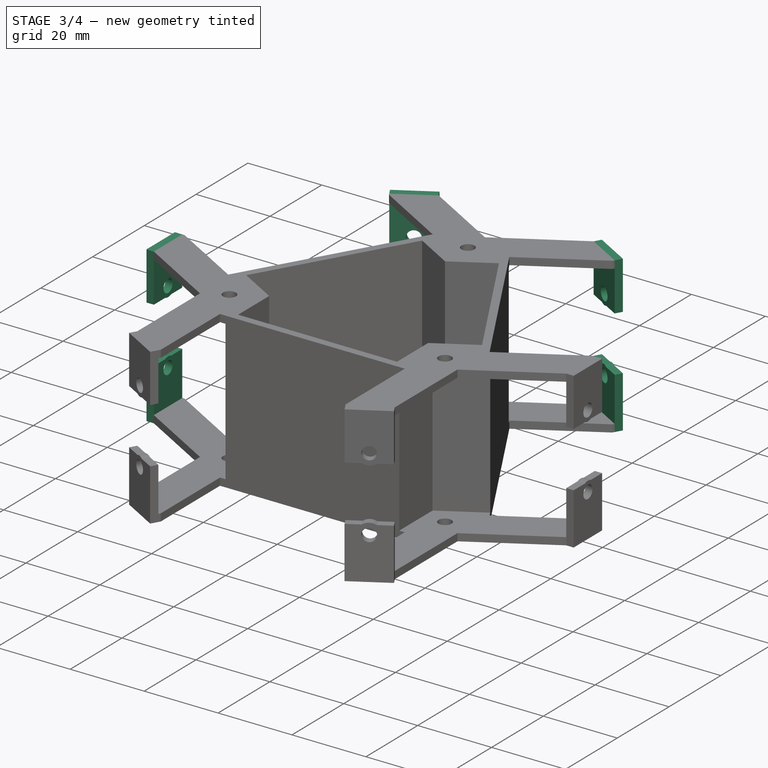
[diagram: stage 3 of 4 — iso view after this stage's code; geometry added in this stage tinted green]
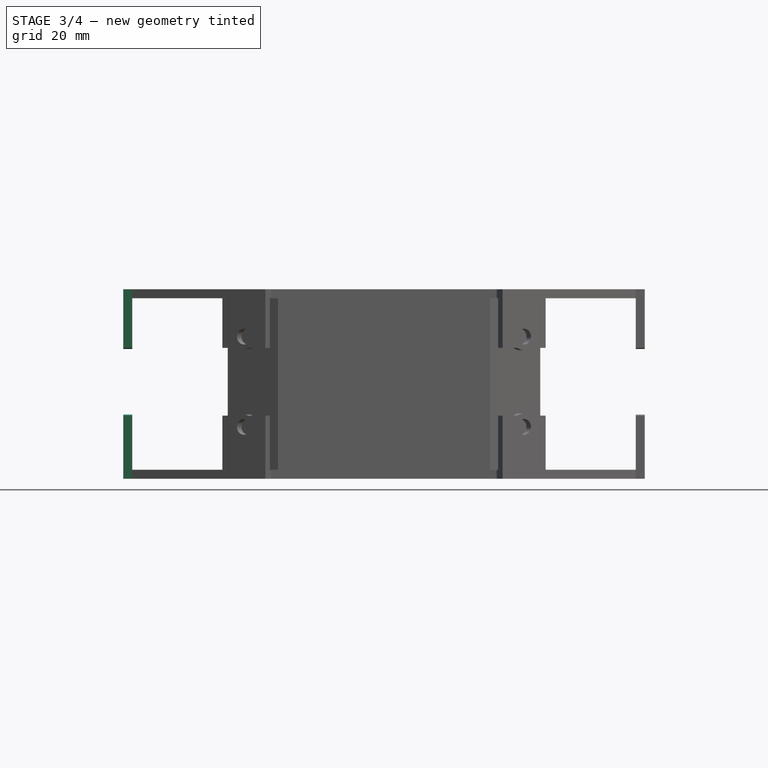
[diagram: stage 3 of 4 — front view after this stage's code; geometry added in this stage tinted green]
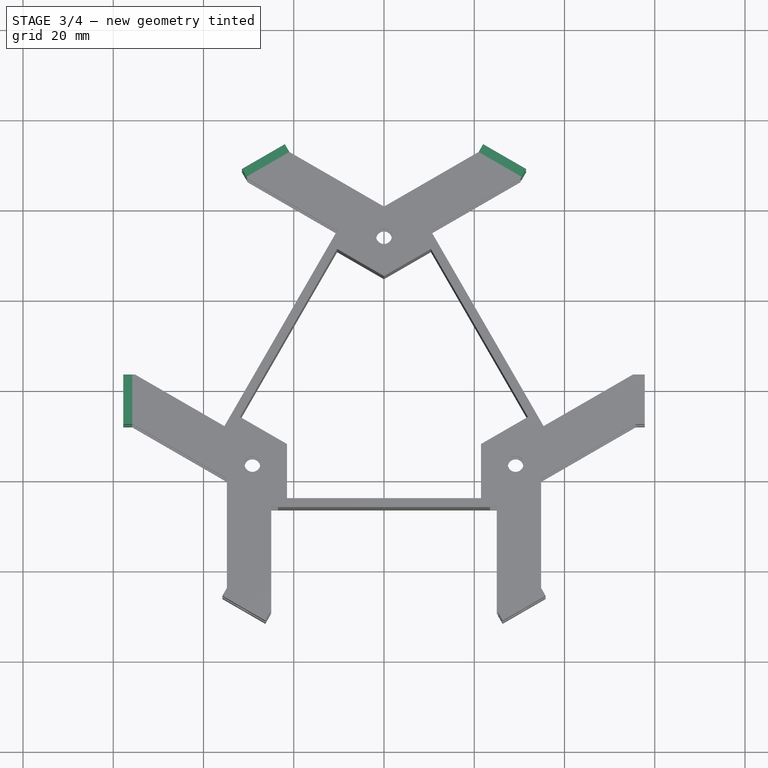
[diagram: stage 3 of 4 — top view after this stage's code; geometry added in this stage tinted green]
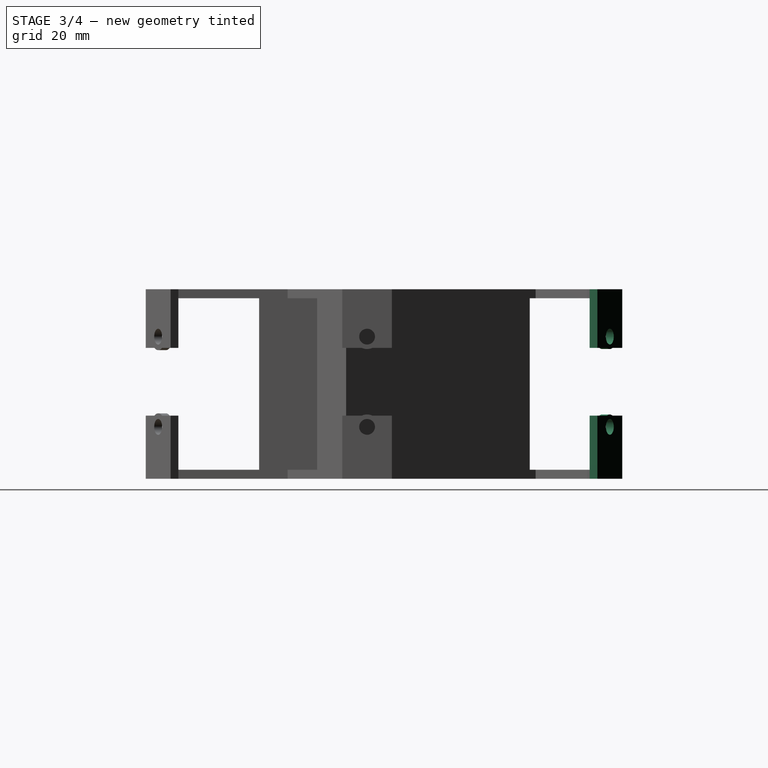
[diagram: stage 3 of 4 — right view after this stage's code; geometry added in this stage tinted green]
FEATURE [Sketcher::SketchObject] Sketch007
  ExternalGeometry = -> [Pad005]
  FullyConstrained = true
  MapMode = 5
  Placement = pos=(27.8981,48.3209,0) rot=(0.186157,0.694747,0.694747;2.77349rad)
  Support = -> [Pad005]
  sketch-geometry (14):
    g0: LineSegment StartX=-3 StartY=42 StartZ=0 EndX=8 EndY=42 EndZ=0
    g1: LineSegment StartX=8 StartY=42 StartZ=0 EndX=8 EndY=29 EndZ=0
    g2: LineSegment StartX=8 StartY=29 StartZ=0 EndX=3.64564 EndY=29 EndZ=0
    g3: LineSegment StartX=-3 StartY=29 StartZ=0 EndX=-3 EndY=42 EndZ=0
    g4: LineSegment StartX=-3 StartY=0 StartZ=0 EndX=8 EndY=0 EndZ=0
    g5: LineSegment StartX=8 StartY=0 StartZ=0 EndX=8 EndY=14 EndZ=0
    g6: LineSegment StartX=8 StartY=14 StartZ=0 EndX=3.64564 EndY=14 EndZ=0
    g7: LineSegment StartX=-3 StartY=14 StartZ=0 EndX=-3 EndY=0 EndZ=0
    g8: Circle CenterX=2.5 CenterY=31.5 CenterZ=0 NormalX=0 NormalY=0 NormalZ=1 AngleXU=0 Radius=1.75
    g9: ArcOfCircle CenterX=2.5 CenterY=31.5 CenterZ=0 NormalX=0 NormalY=0 NormalZ=1 AngleXU=0 Radius=2.75 StartAngle=4.28269 EndAngle=5.14209
    g10: Circle CenterX=2.5 CenterY=11.5 CenterZ=0 NormalX=0 NormalY=0 NormalZ=1 AngleXU=0 Radius=1.75
    g11: ArcOfCircle CenterX=2.5 CenterY=11.5 CenterZ=0 NormalX=0 NormalY=0 NormalZ=1 AngleXU=0 Radius=2.75 StartAngle=1.1411 EndAngle=2.0005
    g12: LineSegment StartX=1.35436 StartY=29 StartZ=0 EndX=-3 EndY=29 EndZ=0
    g13: LineSegment StartX=1.35436 StartY=14 StartZ=0 EndX=-3 EndY=14 EndZ=0
  constraints (38):
    c: Coincident(g0,g1)
    c: Coincident(g1,g2)
    c: Coincident(g12,g3)
    c: Coincident(g3,g0)
    c: Horizontal(g0)
    c: Horizontal(g2)
    c: Vertical(g1)
    c: Vertical(g3)
    c: Coincident(g0,g-3)
    c: Coincident(g4,g5)
    c: Coincident(g5,g6)
    c: Coincident(g13,g7)
    c: Coincident(g7,g4)
    c: Horizontal(g4)
    c: Horizontal(g6)
    c: Vertical(g5)
    c: Vertical(g7)
    c: Coincident(g4,g-4)
    c: Distance(g0) = 11
    c: Distance(g4) = 11
    c: Distance(g3) = 13
    c: Coincident(g9,g8)
    c: Coincident(g11,g10)
    c: Diameter(g10) = 3.5
    c: Diameter(g11) = 5.5
    c: Diameter(g8) = 3.5
    c: Diameter(g9) = 5.5
    c: Distance(g8,g2) = 2.5
    c: Distance(g8,g3) = 5.5
    c: Distance(g8,g10) = 20
    c: Distance(g10,g7) = 5.5
    c: Distance(g10,g6) = 2.5
    c: Coincident(g2,g9)
    c: Coincident(g12,g9)
    c: Tangent(g2,g12)
    c: Coincident(g6,g11)
    c: Coincident(g13,g11)
    c: Tangent(g6,g13)
FEATURE [PartDesign::Pad] Pad006
  BaseFeature = -> Pad005
  Direction = (1,1,1)
  Length = 2
  Length2 = 100
  Profile = -> Sketch007
  Type = 0
FEATURE [Sketcher::SketchObject] Sketch008
  ExternalGeometry = -> [Pad006]
  FullyConstrained = true
  MapMode = 5
  Placement = pos=(-55.7962,-3.08644e-06,0) rot=(0.57735,-0.57735,-0.57735;2.0944rad)
  Support = -> [Pad006]
  sketch-geometry (14):
    g0: LineSegment StartX=-3 StartY=42 StartZ=0 EndX=8 EndY=42 EndZ=0
    g1: LineSegment StartX=8 StartY=42 StartZ=0 EndX=8 EndY=29 EndZ=0
    g2: LineSegment StartX=8 StartY=29 StartZ=0 EndX=3.64564 EndY=29 EndZ=0
    g3: LineSegment StartX=-3 StartY=29 StartZ=0 EndX=-3 EndY=42 EndZ=0
    g4: LineSegment StartX=-3 StartY=2e-16 StartZ=0 EndX=8 EndY=2e-16 EndZ=0
    g5: LineSegment StartX=8 StartY=2e-16 StartZ=0 EndX=8 EndY=14 EndZ=0
    g6: LineSegment StartX=8 StartY=14 StartZ=0 EndX=3.64564 EndY=14 EndZ=0
    g7: LineSegment StartX=-3 StartY=14 StartZ=0 EndX=-3 EndY=0 EndZ=0
    g8: Circle CenterX=2.5 CenterY=31.5 CenterZ=0 NormalX=0 NormalY=0 NormalZ=1 AngleXU=0 Radius=1.75
    g9: ArcOfCircle CenterX=2.5 CenterY=31.5 CenterZ=0 NormalX=0 NormalY=0 NormalZ=1 AngleXU=0 Radius=2.75 StartAngle=4.28269 EndAngle=5.14209
    g10: Circle CenterX=2.5 CenterY=11.5 CenterZ=0 NormalX=0 NormalY=0 NormalZ=1 AngleXU=0 Radius=1.75
    g11: ArcOfCircle CenterX=2.5 CenterY=11.5 CenterZ=0 NormalX=0 NormalY=0 NormalZ=1 AngleXU=0 Radius=2.75 StartAngle=1.1411 EndAngle=2.0005
    g12: LineSegment StartX=1.35435 StartY=29 StartZ=0 EndX=-3 EndY=29 EndZ=0
    g13: LineSegment StartX=1.35435 StartY=14 StartZ=0 EndX=-3 EndY=14 EndZ=0
  constraints (38):
    c: Coincident(g0,g1)
    c: Coincident(g1,g2)
    c: Coincident(g12,g3)
    c: Coincident(g3,g0)
    c: Horizontal(g0)
    c: Horizontal(g2)
    c: Vertical(g1)
    c: Vertical(g3)
    c: Coincident(g0,g-3)
    c: Coincident(g4,g5)
    c: Coincident(g5,g6)
    c: Coincident(g13,g7)
    c: Coincident(g7,g4)
    c: Horizontal(g4)
    c: Horizontal(g6)
    c: Vertical(g5)
    c: Vertical(g7)
    c: Distance(g0) = 11
    c: Distance(g4) = 11
    c: Distance(g3) = 13
    c: Coincident(g4,g-4)
    c: Coincident(g9,g8)
    c: Coincident(g11,g10)
    c: Diameter(g8) = 3.5
    c: Diameter(g10) = 3.5
    c: Diameter(g9) = 5.5
    c: Diameter(g11) = 5.5
    c: Distance(g8,g2) = 2.5
    c: Distance(g8,g3) = 5.5
    c: Distance(g8,g10) = 20
    c: Distance(g10,g6) = 2.5
    c: Distance(g10,g7) = 5.5
    c: Coincident(g2,g9)
    c: Coincident(g12,g9)
    c: Tangent(g2,g12)
    c: Coincident(g6,g11)
    c: Coincident(g13,g11)
    c: Tangent(g6,g13)
FEATURE [PartDesign::Pad] Pad007
  BaseFeature = -> Pad006
  Direction = (1,1,1)
  Length = 2
  Length2 = 100
  Profile = -> Sketch008
  Type = 0
FEATURE [Sketcher::SketchObject] Sketch009
  ExternalGeometry = -> [Pad007]
  FullyConstrained = true
  MapMode = 5
  Placement = pos=(-27.8981,48.3209,0) rot=(-0.186157,0.694747,0.694747;3.50969rad)
  Support = -> [Pad007]
  sketch-geometry (14):
    g0: LineSegment StartX=-8 StartY=42 StartZ=0 EndX=3 EndY=42 EndZ=0
    g1: LineSegment StartX=3 StartY=42 StartZ=0 EndX=3 EndY=29 EndZ=0
    g2: LineSegment StartX=3 StartY=29 StartZ=0 EndX=-1.35436 EndY=29 EndZ=0
    g3: LineSegment StartX=-8 StartY=29 StartZ=0 EndX=-8 EndY=42 EndZ=0
    g4: LineSegment StartX=-8 StartY=0 StartZ=0 EndX=3 EndY=0 EndZ=0
    g5: LineSegment StartX=3 StartY=0 StartZ=0 EndX=3 EndY=14 EndZ=0
    g6: LineSegment StartX=3 StartY=14 StartZ=0 EndX=-1.35436 EndY=14 EndZ=0
    g7: LineSegment StartX=-8 StartY=14 StartZ=0 EndX=-8 EndY=0 EndZ=0
    g8: Circle CenterX=-2.5 CenterY=31.5 CenterZ=0 NormalX=0 NormalY=0 NormalZ=1 AngleXU=0 Radius=1.75
    g9: ArcOfCircle CenterX=-2.5 CenterY=31.5 CenterZ=0 NormalX=0 NormalY=0 NormalZ=1 AngleXU=0 Radius=2.75 StartAngle=4.28269 EndAngle=5.14209
    g10: Circle CenterX=-2.5 CenterY=11.5 CenterZ=0 NormalX=0 NormalY=0 NormalZ=1 AngleXU=0 Radius=1.75
    g11: ArcOfCircle CenterX=-2.5 CenterY=11.5 CenterZ=0 NormalX=0 NormalY=0 NormalZ=1 AngleXU=0 Radius=2.75 StartAngle=1.1411 EndAngle=2.0005
    g12: LineSegment StartX=-3.64564 StartY=29 StartZ=0 EndX=-8 EndY=29 EndZ=0
    g13: LineSegment StartX=-3.64564 StartY=14 StartZ=0 EndX=-8 EndY=14 EndZ=0
  constraints (38):
    c: Coincident(g0,g1)
    c: Coincident(g1,g2)
    c: Coincident(g12,g3)
    c: Coincident(g3,g0)
    c: Horizontal(g0)
    c: Horizontal(g2)
    c: Vertical(g1)
    c: Vertical(g3)
    c: Coincident(g0,g-3)
    c: Coincident(g4,g5)
    c: Coincident(g5,g6)
    c: Coincident(g13,g7)
    c: Coincident(g7,g4)
    c: Horizontal(g4)
    c: Horizontal(g6)
    c: Vertical(g5)
    c: Vertical(g7)
    c: Coincident(g4,g-4)
    c: Distance(g0) = 11
    c: Distance(g3) = 13
    c: Distance(g4) = 11
    c: Coincident(g9,g8)
    c: Coincident(g11,g10)
    c: Diameter(g8) = 3.5
    c: Diameter(g10) = 3.5
    c: Diameter(g9) = 5.5
    c: Diameter(g11) = 5.5
    c: Distance(g8,g2) = 2.5
    c: Distance(g8,g3) = 5.5
    c: Distance(g8,g10) = 20
    c: Distance(g10,g6) = 2.5
    c: Distance(g10,g7) = 5.5
    c: Coincident(g2,g9)
    c: Coincident(g12,g9)
    c: Tangent(g2,g12)
    c: Coincident(g6,g11)
    c: Coincident(g13,g11)
    c: Tangent(g6,g13)
FEATURE [PartDesign::Pad] Pad008
  BaseFeature = -> Pad007
  Direction = (1,1,1)
  Length = 2
  Length2 = 100
  Profile = -> Sketch009
  Type = 0
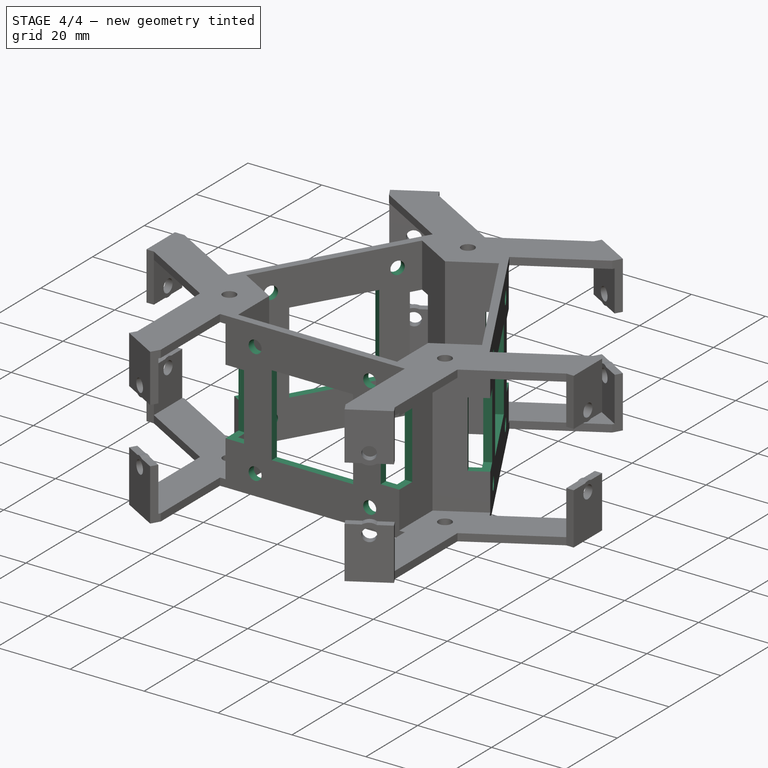
[diagram: stage 4 of 4 — iso view after this stage's code; geometry added in this stage tinted green]
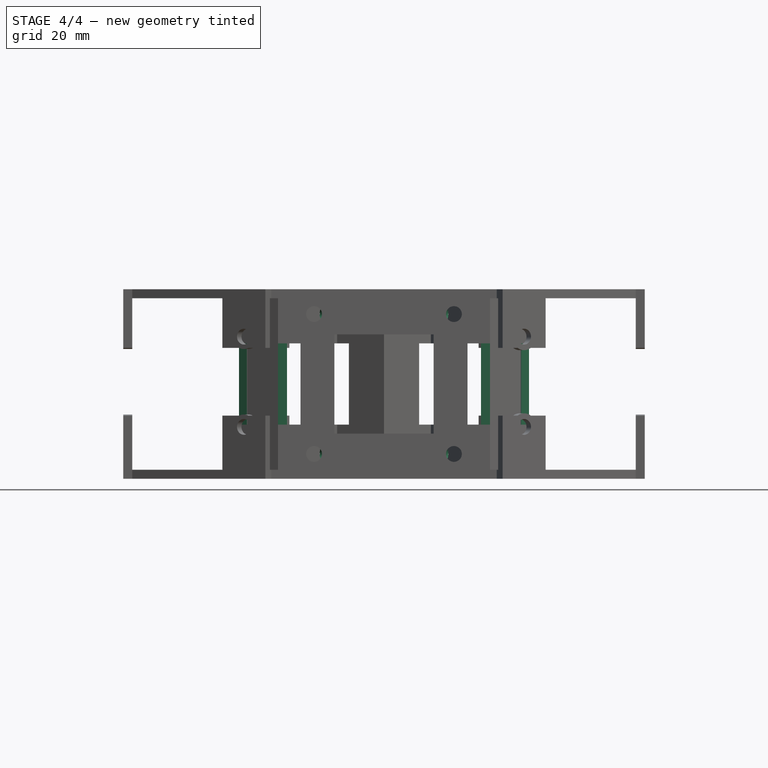
[diagram: stage 4 of 4 — front view after this stage's code; geometry added in this stage tinted green]
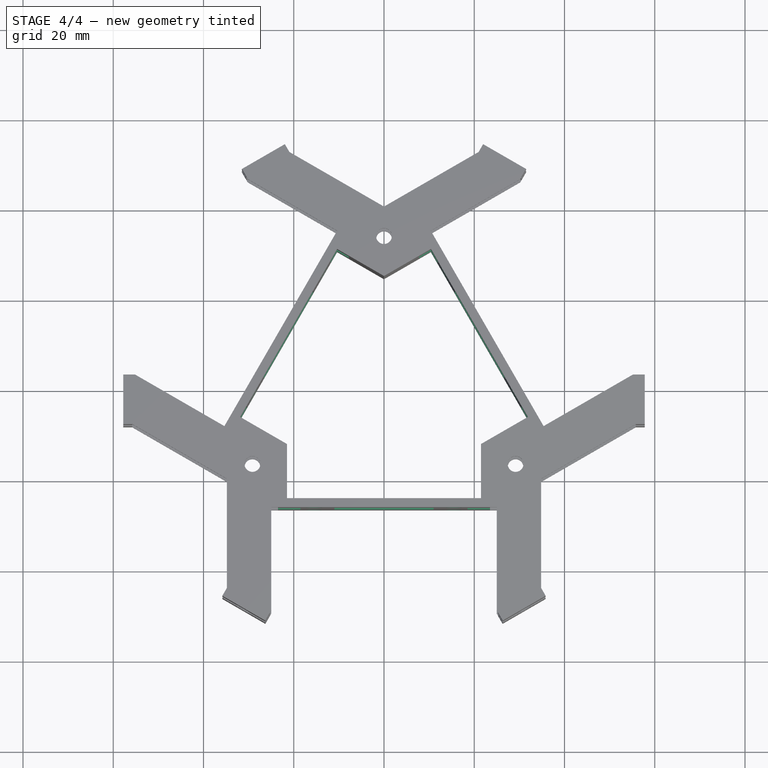
[diagram: stage 4 of 4 — top view after this stage's code; geometry added in this stage tinted green]
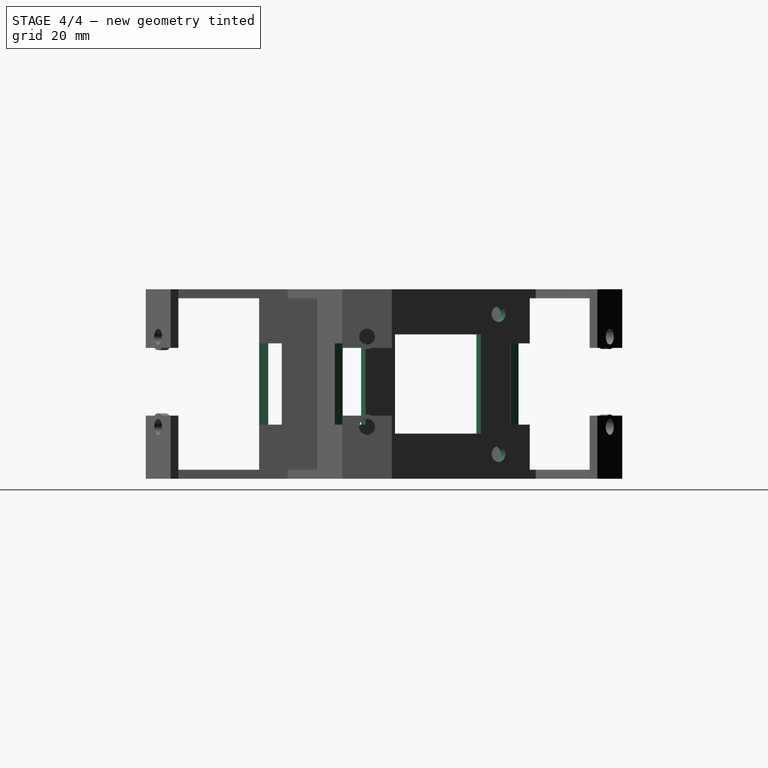
[diagram: stage 4 of 4 — right view after this stage's code; geometry added in this stage tinted green]
FEATURE [Sketcher::SketchObject] Sketch010
  ExternalGeometry = -> [Pad008]
  FullyConstrained = true
  MapMode = 5
  Placement = pos=(0,-26.413,0) rot=(1,0,0;1.5708rad)
  Support = -> [Pad008]
  sketch-geometry (16):
    g0: Circle CenterX=-15.5 CenterY=36.5 CenterZ=0 NormalX=0 NormalY=0 NormalZ=1 AngleXU=0 Radius=1.75
    g1: Circle CenterX=15.5 CenterY=36.5 CenterZ=0 NormalX=0 NormalY=0 NormalZ=1 AngleXU=0 Radius=1.75
    g2: Circle CenterX=-15.5 CenterY=5.5 CenterZ=0 NormalX=0 NormalY=0 NormalZ=1 AngleXU=0 Radius=1.75
    g3: Circle CenterX=15.5 CenterY=5.5 CenterZ=0 NormalX=0 NormalY=0 NormalZ=1 AngleXU=0 Radius=1.75
    g4: LineSegment StartX=-11 StartY=32 StartZ=0 EndX=11 EndY=32 EndZ=0
    g5: LineSegment StartX=11 StartY=32 StartZ=0 EndX=11 EndY=10 EndZ=0
    g6: LineSegment StartX=11 StartY=10 StartZ=0 EndX=-11 EndY=10 EndZ=0
    g7: LineSegment StartX=-11 StartY=10 StartZ=0 EndX=-11 EndY=32 EndZ=0
    g8: LineSegment StartX=-23.5 StartY=30 StartZ=0 EndX=-18.5 EndY=30 EndZ=0
    g9: LineSegment StartX=-18.5 StartY=30 StartZ=0 EndX=-18.5 EndY=12 EndZ=0
    g10: LineSegment StartX=-18.5 StartY=12 StartZ=0 EndX=-23.5 EndY=12 EndZ=0
    g11: LineSegment StartX=-23.5 StartY=12 StartZ=0 EndX=-23.5 EndY=30 EndZ=0
    g12: LineSegment StartX=23.5 StartY=30 StartZ=0 EndX=18.5 EndY=30 EndZ=0
    g13: LineSegment StartX=18.5 StartY=30 StartZ=0 EndX=18.5 EndY=12 EndZ=0
    g14: LineSegment StartX=18.5 StartY=12 StartZ=0 EndX=23.5 EndY=12 EndZ=0
    g15: LineSegment StartX=23.5 StartY=12 StartZ=0 EndX=23.5 EndY=30 EndZ=0
  constraints (48):
    c: Diameter(g0) = 3.5
    c: Diameter(g1) = 3.5
    c: Diameter(g2) = 3.5
    c: Diameter(g3) = 3.5
    c: Distance(g3,g-1) = 5.5
    c: Distance(g2,g-1) = 5.5
    c: Distance(g2,g-5) = 8
    c: Distance(g0,g-5) = 8
    c: Distance(g0,g2) = 31
    c: Distance(g3,g2) = 31
    c: Distance(g3,g1) = 31
    c: Distance(g1,g0) = 31
    c: Coincident(g4,g5)
    c: Coincident(g5,g6)
    c: Coincident(g6,g7)
    c: Coincident(g7,g4)
    c: Horizontal(g4)
    c: Horizontal(g6)
    c: Vertical(g5)
    c: Vertical(g7)
    c: Distance(g6,g-4) = 10
    c: Distance(g4,g-3) = 10
    c: Distance(g6,g-5) = 12.5
    c: Distance(g5,g-6) = 12.5
    c: Coincident(g8,g9)
    c: Coincident(g9,g10)
    c: Coincident(g10,g11)
    c: Coincident(g11,g8)
    c: Horizontal(g8)
    c: Horizontal(g10)
    c: Vertical(g9)
    c: Vertical(g11)
    c: PointOnObject(g8,g-5)
    c: Distance(g8,g-3) = 12
    c: Distance(g9,g-4) = 12
    c: Distance(g8) = 5
    c: Coincident(g12,g13)
    c: Coincident(g13,g14)
    c: Coincident(g14,g15)
    c: Coincident(g15,g12)
    c: Horizontal(g12)
    c: Horizontal(g14)
    c: Vertical(g13)
    c: Vertical(g15)
    c: PointOnObject(g12,g-6)
    c: Distance(g12) = 5
    c: Distance(g12,g-3) = 12
    c: Distance(g13,g-4) = 12
FEATURE [PartDesign::Pocket] Pocket
  BaseFeature = -> Pad008
  Length = 5
  Length2 = 100
  Profile = -> Sketch010
  Type = 0
FEATURE [Sketcher::SketchObject] Sketch011
  ExternalGeometry = -> [Pocket]
  FullyConstrained = true
  MapMode = 5
  Placement = pos=(22.8744,13.2065,0) rot=(0.377964,0.654654,0.654654;2.41886rad)
  Support = -> [Pocket]
  sketch-geometry (20):
    g0: LineSegment StartX=-15.5 StartY=36.5 StartZ=0 EndX=15.5 EndY=36.5 EndZ=0
    g1: LineSegment StartX=15.5 StartY=36.5 StartZ=0 EndX=15.5 EndY=5.5 EndZ=0
    g2: LineSegment StartX=15.5 StartY=5.5 StartZ=0 EndX=-15.5 EndY=5.5 EndZ=0
    g3: LineSegment StartX=-15.5 StartY=5.5 StartZ=0 EndX=-15.5 EndY=36.5 EndZ=0
    g4: Circle CenterX=-15.5 CenterY=36.5 CenterZ=0 NormalX=0 NormalY=0 NormalZ=1 AngleXU=0 Radius=1.75
    g5: Circle CenterX=15.5 CenterY=36.5 CenterZ=0 NormalX=0 NormalY=0 NormalZ=1 AngleXU=0 Radius=1.75
    g6: Circle CenterX=15.5 CenterY=5.5 CenterZ=0 NormalX=0 NormalY=0 NormalZ=1 AngleXU=0 Radius=1.75
    g7: Circle CenterX=-15.5 CenterY=5.5 CenterZ=0 NormalX=0 NormalY=0 NormalZ=1 AngleXU=0 Radius=1.75
    g8: LineSegment StartX=-11 StartY=32 StartZ=0 EndX=11 EndY=32 EndZ=0
    g9: LineSegment StartX=11 StartY=32 StartZ=0 EndX=11 EndY=10 EndZ=0
    g10: LineSegment StartX=11 StartY=10 StartZ=0 EndX=-11 EndY=10 EndZ=0
    g11: LineSegment StartX=-11 StartY=10 StartZ=0 EndX=-11 EndY=32 EndZ=0
    g12: LineSegment StartX=-23.5 StartY=30 StartZ=0 EndX=-18.5 EndY=30 EndZ=0
    g13: LineSegment StartX=-18.5 StartY=30 StartZ=0 EndX=-18.5 EndY=12 EndZ=0
    g14: LineSegment StartX=-18.5 StartY=12 StartZ=0 EndX=-23.5 EndY=12 EndZ=0
    g15: LineSegment StartX=-23.5 StartY=12 StartZ=0 EndX=-23.5 EndY=30 EndZ=0
    g16: LineSegment StartX=23.5 StartY=30 StartZ=0 EndX=18.5 EndY=30 EndZ=0
    g17: LineSegment StartX=18.5 StartY=30 StartZ=0 EndX=18.5 EndY=12 EndZ=0
    g18: LineSegment StartX=18.5 StartY=12 StartZ=0 EndX=23.5 EndY=12 EndZ=0
    g19: LineSegment StartX=23.5 StartY=12 StartZ=0 EndX=23.5 EndY=30 EndZ=0
  constraints (56):
    c: Coincident(g0,g1)
    c: Coincident(g1,g2)
    c: Coincident(g2,g3)
    c: Coincident(g3,g0)
    c: Horizontal(g0)
    c: Horizontal(g2)
    c: Vertical(g1)
    c: Vertical(g3)
    c: Distance(g2,g-6) = 5.5
    c: Distance(g2,g-4) = 8
    c: Distance(g3) = 31
    c: Distance(g0) = 31
    c: Coincident(g4,g0)
    c: Coincident(g5,g0)
    c: Coincident(g6,g1)
    c: Coincident(g7,g2)
    c: Diameter(g4) = 3.5
    c: Diameter(g5) = 3.5
    c: Diameter(g6) = 3.5
    c: Diameter(g7) = 3.5
    c: Coincident(g8,g9)
    c: Coincident(g9,g10)
    c: Coincident(g10,g11)
    c: Coincident(g11,g8)
    c: Horizontal(g8)
    c: Horizontal(g10)
    c: Vertical(g9)
    c: Vertical(g11)
    c: Distance(g10,g-6) = 10
    c: Distance(g8,g-3) = 10
    c: Distance(g8,g-4) = 12.5
    c: Distance(g9,g-5) = 12.5
    c: Coincident(g12,g13)
    c: Coincident(g13,g14)
    c: Coincident(g14,g15)
    c: Coincident(g15,g12)
    c: Horizontal(g12)
    c: Horizontal(g14)
    c: Vertical(g13)
    c: Vertical(g15)
    c: PointOnObject(g12,g-4)
    c: Coincident(g16,g17)
    c: Coincident(g17,g18)
    c: Coincident(g18,g19)
    c: Coincident(g19,g16)
    c: Horizontal(g16)
    c: Horizontal(g18)
    c: Vertical(g17)
    c: Vertical(g19)
    c: PointOnObject(g16,g-5)
    c: Distance(g16) = 5
    c: Distance(g12) = 5
    c: Distance(g12,g-3) = 12
    c: Distance(g13,g-6) = 12
    c: Distance(g17,g-6) = 12
    c: Distance(g16,g-3) = 12
FEATURE [PartDesign::Pocket] Pocket001
  BaseFeature = -> Pocket
  Length = 5
  Length2 = 100
  Profile = -> Sketch011
  Type = 0
FEATURE [Sketcher::SketchObject] Sketch012
  ExternalGeometry = -> [Pocket001]
  FullyConstrained = true
  MapMode = 5
  Placement = pos=(-22.8744,13.2065,0) rot=(-0.377964,0.654654,0.654654;3.86433rad)
  Support = -> [Pocket001]
  sketch-geometry (20):
    g0: LineSegment StartX=-15.5 StartY=36.5 StartZ=0 EndX=15.5 EndY=36.5 EndZ=0
    g1: LineSegment StartX=15.5 StartY=36.5 StartZ=0 EndX=15.5 EndY=5.5 EndZ=0
    g2: LineSegment StartX=15.5 StartY=5.5 StartZ=0 EndX=-15.5 EndY=5.5 EndZ=0
    g3: LineSegment StartX=-15.5 StartY=5.5 StartZ=0 EndX=-15.5 EndY=36.5 EndZ=0
    g4: Circle CenterX=-15.5 CenterY=36.5 CenterZ=0 NormalX=0 NormalY=0 NormalZ=1 AngleXU=0 Radius=1.75
    g5: Circle CenterX=15.5 CenterY=36.5 CenterZ=0 NormalX=0 NormalY=0 NormalZ=1 AngleXU=0 Radius=1.75
    g6: Circle CenterX=15.5 CenterY=5.5 CenterZ=0 NormalX=0 NormalY=0 NormalZ=1 AngleXU=0 Radius=1.75
    g7: Circle CenterX=-15.5 CenterY=5.5 CenterZ=0 NormalX=0 NormalY=0 NormalZ=1 AngleXU=0 Radius=1.75
    g8: LineSegment StartX=-11 StartY=32 StartZ=0 EndX=11 EndY=32 EndZ=0
    g9: LineSegment StartX=11 StartY=32 StartZ=0 EndX=11 EndY=10 EndZ=0
    g10: LineSegment StartX=11 StartY=10 StartZ=0 EndX=-11 EndY=10 EndZ=0
    g11: LineSegment StartX=-11 StartY=10 StartZ=0 EndX=-11 EndY=32 EndZ=0
    g12: LineSegment StartX=-23.5 StartY=30 StartZ=0 EndX=-18.5 EndY=30 EndZ=0
    g13: LineSegment StartX=-18.5 StartY=30 StartZ=0 EndX=-18.5 EndY=12 EndZ=0
    g14: LineSegment StartX=-18.5 StartY=12 StartZ=0 EndX=-23.5 EndY=12 EndZ=0
    g15: LineSegment StartX=-23.5 StartY=12 StartZ=0 EndX=-23.5 EndY=30 EndZ=0
    g16: LineSegment StartX=23.5 StartY=30 StartZ=0 EndX=18.5 EndY=30 EndZ=0
    g17: LineSegment StartX=18.5 StartY=30 StartZ=0 EndX=18.5 EndY=12 EndZ=0
    g18: LineSegment StartX=18.5 StartY=12 StartZ=0 EndX=23.5 EndY=12 EndZ=0
    g19: LineSegment StartX=23.5 StartY=12 StartZ=0 EndX=23.5 EndY=30 EndZ=0
  constraints (57):
    c: Coincident(g0,g1)
    c: Coincident(g1,g2)
    c: Coincident(g2,g3)
    c: Coincident(g3,g0)
    c: Horizontal(g0)
    c: Horizontal(g2)
    c: Vertical(g1)
    c: Vertical(g3)
    c: Distance(g0) = 31
    c: Distance(g3) = 31
    c: Distance(g2,g-6) = 5.5
    c: Distance(g2,g-4) = 8
    c: Coincident(g4,g0)
    c: Coincident(g5,g0)
    c: Coincident(g6,g1)
    c: Coincident(g7,g2)
    c: Diameter(g4) = 3.5
    c: Diameter(g5) = 3.5
    c: Diameter(g6) = 3.5
    c: Diameter(g7) = 3.5
    c: Coincident(g8,g9)
    c: Coincident(g9,g10)
    c: Coincident(g10,g11)
    c: Coincident(g11,g8)
    c: Horizontal(g8)
    c: Horizontal(g10)
    c: Vertical(g9)
    c: Vertical(g11)
    c: Distance(g10,g-6) = 10
    c: Distance(g10,g-4) = 12.5
    c: Distance(g9,g-5) = 12.5
    c: Distance(g-3) = 47
    c: Distance(g8,g-3) = 10
    c: Coincident(g12,g13)
    c: Coincident(g13,g14)
    c: Coincident(g14,g15)
    c: Coincident(g15,g12)
    c: Horizontal(g12)
    c: Horizontal(g14)
    c: Vertical(g13)
    c: Vertical(g15)
    c: PointOnObject(g12,g-4)
    c: Coincident(g16,g17)
    c: Coincident(g17,g18)
    c: Coincident(g18,g19)
    c: Coincident(g19,g16)
    c: Horizontal(g16)
    c: Horizontal(g18)
    c: Vertical(g17)
    c: Vertical(g19)
    c: PointOnObject(g16,g-5)
    c: Distance(g12) = 5
    c: Distance(g16) = 5
    c: Distance(g16,g-3) = 12
    c: Distance(g17,g-6) = 12
    c: Distance(g12,g-3) = 12
    c: Distance(g13,g-6) = 12
FEATURE [PartDesign::Pocket] Pocket002
  BaseFeature = -> Pocket001
  Length = 5
  Length2 = 100
  Profile = -> Sketch012
  Type = 0
FEATURE [PartDesign::Body] Body
  Group = -> [Sketch,Pad,Sketch001,Pad001,Sketch004,Pad002,Sketch003,Pad003,Sketch005,Pad004,Sketch006,Pad005,Sketch007,Pad006,Sketch008,Pad007,Sketch009,Pad008,Sketch010,Pocket,Sketch011,Pocket001,Sketch012,Pocket002]
  Origin = -> Origin
  Tip = -> Pocket002
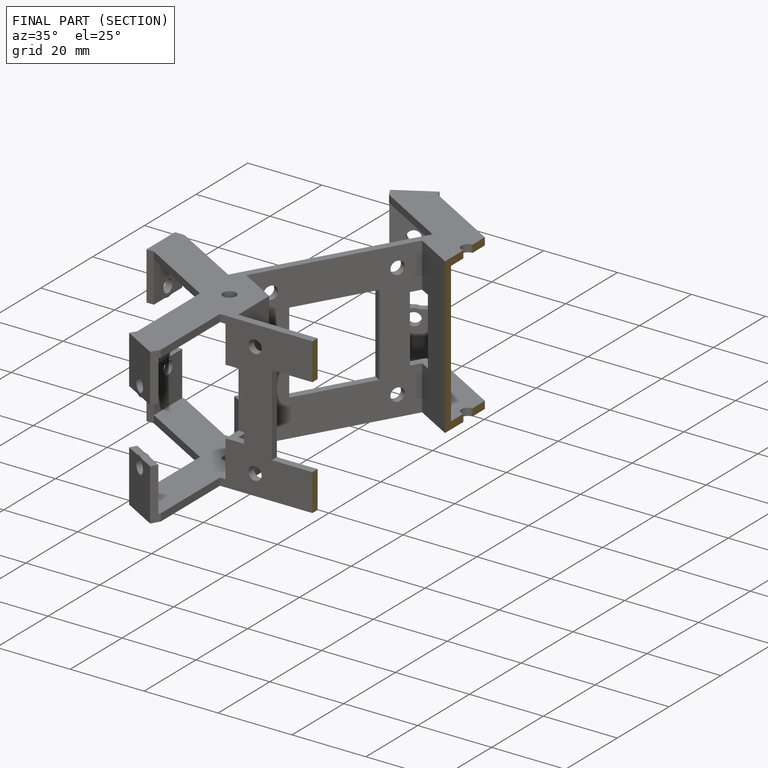
[diagram: finished part — half-section view (interior)]
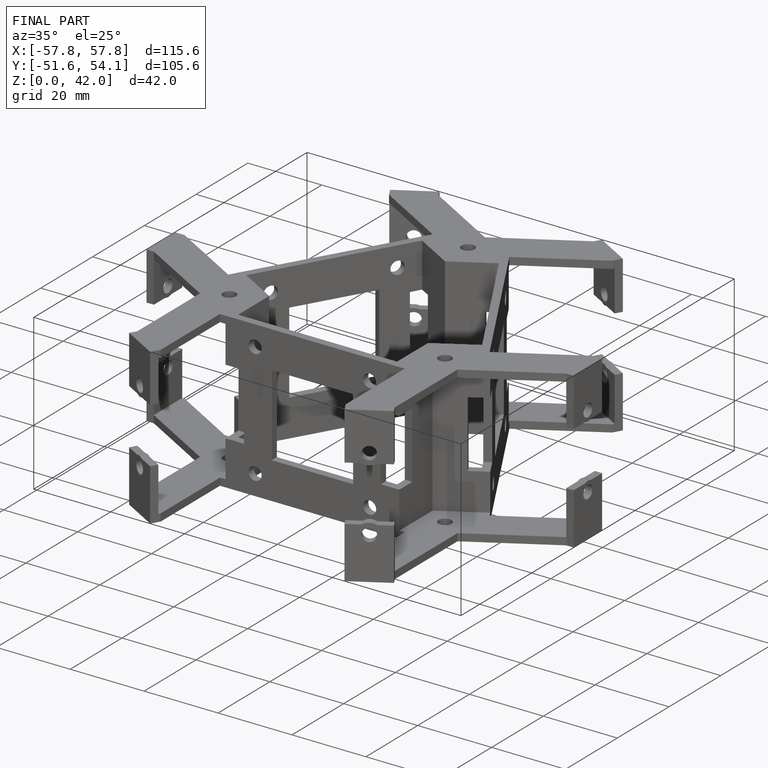
[diagram: finished part — iso view with bounding-box wireframe]
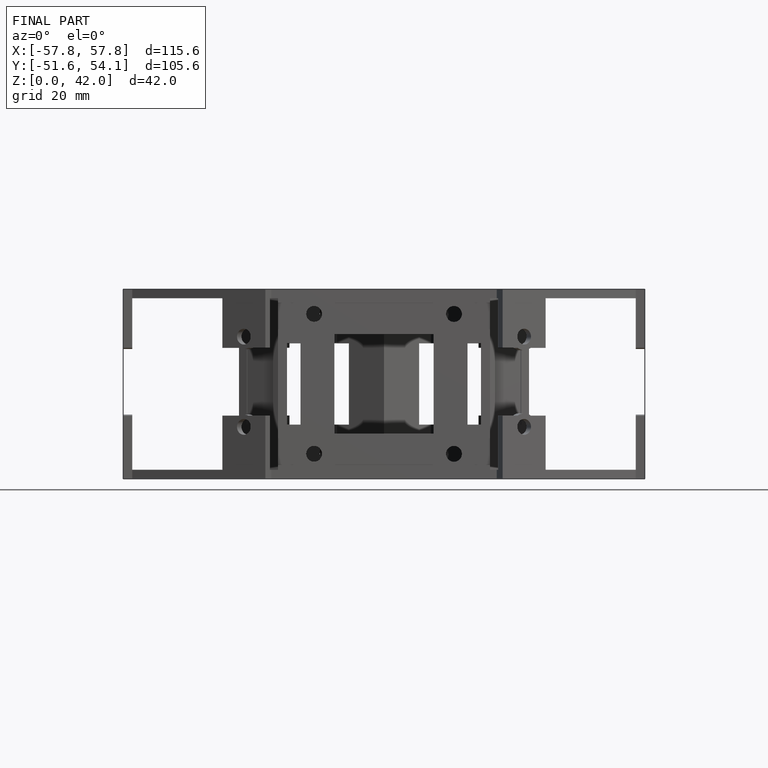
[diagram: finished part — front view with bounding-box wireframe]
